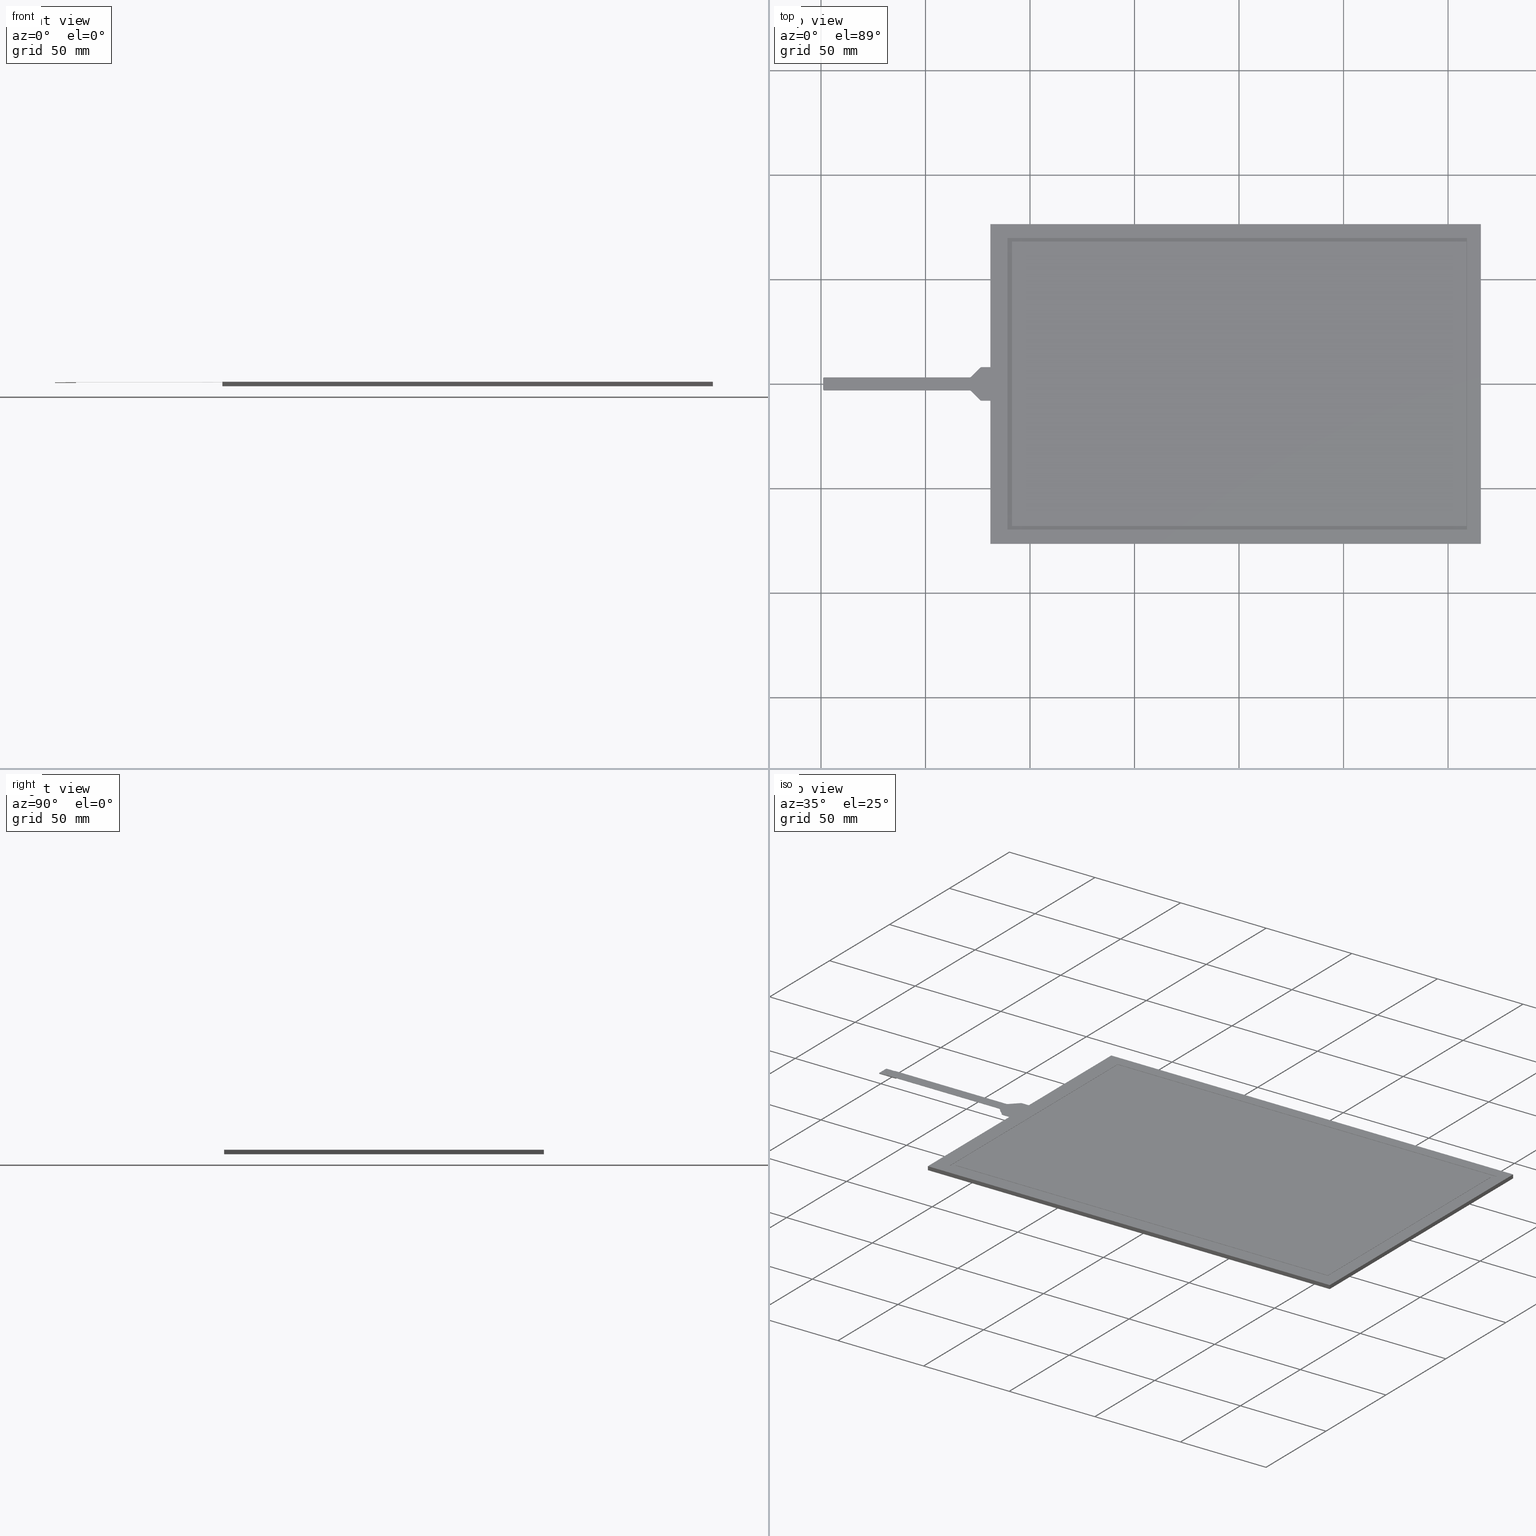
[diagram: canonical four-view strip — front | top / right | iso, engineering-drawing reading convention]
A machine part, canonical four-view strip (front | top / right | iso — engineering-drawing reading convention). The complete STEP part file that produces these views, byte-faithful:
ISO-10303-21;
HEADER;
/* Generated by software containing ST-Developer
 * from STEP Tools, Inc. (www.steptools.com) 
 */

FILE_DESCRIPTION(
/* description */ (''),
/* implementation_level */ '2;1');

FILE_NAME(
/* name */ 
'\\\\172.16.4.5\\\X2\65B06280885390E8\X0\$\\10 \X2\4E0066424FDD7BA1\X0\\\
\X2\5E737530\X0\\\\X2\2465\X0\ 3D CAD\\\X2\2460\X0\ \X2\6A196E9654C1\X0\\\
\X2\62B56297819C\X0\\\\X2\2460\X0\ LST\\LST-101WB080A\\LST-101WB080A.s
tp',
/* time_stamp */ '2023-04-26T11:03:07+09:00',
/* author */ ('n-hirata'),
/* organization */ (''),
/* preprocessor_version */ 'ST-DEVELOPER v18.1',
/* originating_system */ 'Autodesk Inventor 2020',
/* authorisation */ '');

FILE_SCHEMA (('CONFIG_CONTROL_DESIGN'));
ENDSEC;

DATA;
#10=MECHANICAL_DESIGN_GEOMETRIC_PRESENTATION_REPRESENTATION('',(#13),#1617);
#11=SHAPE_REPRESENTATION_RELATIONSHIP('SRR','None',#1624,#12);
#12=ADVANCED_BREP_SHAPE_REPRESENTATION('',(#14),#1616);
#13=STYLED_ITEM('',(#1633),#14);
#14=MANIFOLD_SOLID_BREP('\X2\30BD30EA30C330C9\X0\1',#995);
#15=FACE_BOUND('',#158,.T.);
#16=FACE_BOUND('',#160,.T.);
#17=FACE_BOUND('',#162,.T.);
#18=PLANE('',#1018);
#19=PLANE('',#1022);
#20=PLANE('',#1027);
#21=PLANE('',#1030);
#22=PLANE('',#1031);
#23=PLANE('',#1035);
#24=PLANE('',#1036);
#25=PLANE('',#1040);
#26=PLANE('',#1041);
#27=PLANE('',#1042);
#28=PLANE('',#1043);
#29=PLANE('',#1044);
#30=PLANE('',#1045);
#31=PLANE('',#1046);
#32=PLANE('',#1047);
#33=PLANE('',#1048);
#34=PLANE('',#1049);
#35=PLANE('',#1050);
#36=PLANE('',#1051);
#37=PLANE('',#1052);
#38=PLANE('',#1053);
#39=PLANE('',#1054);
#40=PLANE('',#1055);
#41=PLANE('',#1056);
#42=PLANE('',#1057);
#43=PLANE('',#1058);
#44=PLANE('',#1059);
#45=PLANE('',#1060);
#46=PLANE('',#1061);
#47=PLANE('',#1062);
#48=PLANE('',#1063);
#49=PLANE('',#1064);
#50=PLANE('',#1065);
#51=PLANE('',#1066);
#52=PLANE('',#1067);
#53=PLANE('',#1068);
#54=PLANE('',#1069);
#55=PLANE('',#1070);
#56=PLANE('',#1071);
#57=PLANE('',#1072);
#58=PLANE('',#1073);
#59=PLANE('',#1074);
#60=PLANE('',#1075);
#61=PLANE('',#1076);
#62=PLANE('',#1077);
#63=FACE_OUTER_BOUND('',#114,.T.);
#64=FACE_OUTER_BOUND('',#115,.T.);
#65=FACE_OUTER_BOUND('',#116,.T.);
#66=FACE_OUTER_BOUND('',#117,.T.);
#67=FACE_OUTER_BOUND('',#118,.T.);
#68=FACE_OUTER_BOUND('',#119,.T.);
#69=FACE_OUTER_BOUND('',#120,.T.);
#70=FACE_OUTER_BOUND('',#121,.T.);
#71=FACE_OUTER_BOUND('',#122,.T.);
#72=FACE_OUTER_BOUND('',#123,.T.);
#73=FACE_OUTER_BOUND('',#124,.T.);
#74=FACE_OUTER_BOUND('',#125,.T.);
#75=FACE_OUTER_BOUND('',#126,.T.);
#76=FACE_OUTER_BOUND('',#127,.T.);
#77=FACE_OUTER_BOUND('',#128,.T.);
#78=FACE_OUTER_BOUND('',#129,.T.);
#79=FACE_OUTER_BOUND('',#130,.T.);
#80=FACE_OUTER_BOUND('',#131,.T.);
#81=FACE_OUTER_BOUND('',#132,.T.);
#82=FACE_OUTER_BOUND('',#133,.T.);
#83=FACE_OUTER_BOUND('',#134,.T.);
#84=FACE_OUTER_BOUND('',#135,.T.);
#85=FACE_OUTER_BOUND('',#136,.T.);
#86=FACE_OUTER_BOUND('',#137,.T.);
#87=FACE_OUTER_BOUND('',#138,.T.);
#88=FACE_OUTER_BOUND('',#139,.T.);
#89=FACE_OUTER_BOUND('',#140,.T.);
#90=FACE_OUTER_BOUND('',#141,.T.);
#91=FACE_OUTER_BOUND('',#142,.T.);
#92=FACE_OUTER_BOUND('',#143,.T.);
#93=FACE_OUTER_BOUND('',#144,.T.);
#94=FACE_OUTER_BOUND('',#145,.T.);
#95=FACE_OUTER_BOUND('',#146,.T.);
#96=FACE_OUTER_BOUND('',#147,.T.);
#97=FACE_OUTER_BOUND('',#148,.T.);
#98=FACE_OUTER_BOUND('',#149,.T.);
#99=FACE_OUTER_BOUND('',#150,.T.);
#100=FACE_OUTER_BOUND('',#151,.T.);
#101=FACE_OUTER_BOUND('',#152,.T.);
#102=FACE_OUTER_BOUND('',#153,.T.);
#103=FACE_OUTER_BOUND('',#154,.T.);
#104=FACE_OUTER_BOUND('',#155,.T.);
#105=FACE_OUTER_BOUND('',#156,.T.);
#106=FACE_OUTER_BOUND('',#157,.T.);
#107=FACE_OUTER_BOUND('',#159,.T.);
#108=FACE_OUTER_BOUND('',#161,.T.);
#109=FACE_OUTER_BOUND('',#163,.T.);
#110=FACE_OUTER_BOUND('',#164,.T.);
#111=FACE_OUTER_BOUND('',#165,.T.);
#112=FACE_OUTER_BOUND('',#166,.T.);
#113=FACE_OUTER_BOUND('',#167,.T.);
#114=EDGE_LOOP('',(#662,#663,#664,#665));
#115=EDGE_LOOP('',(#666,#667,#668,#669,#670,#671,#672,#673,#674,#675,#676,
#677));
#116=EDGE_LOOP('',(#678,#679,#680,#681));
#117=EDGE_LOOP('',(#682,#683,#684,#685));
#118=EDGE_LOOP('',(#686,#687,#688,#689));
#119=EDGE_LOOP('',(#690,#691,#692,#693,#694,#695,#696,#697));
#120=EDGE_LOOP('',(#698,#699,#700,#701));
#121=EDGE_LOOP('',(#702,#703,#704,#705));
#122=EDGE_LOOP('',(#706,#707,#708,#709,#710,#711,#712,#713,#714,#715,#716,
#717));
#123=EDGE_LOOP('',(#718,#719,#720,#721));
#124=EDGE_LOOP('',(#722,#723,#724,#725,#726));
#125=EDGE_LOOP('',(#727,#728,#729,#730,#731,#732,#733,#734,#735,#736,#737,
#738,#739,#740,#741,#742,#743,#744,#745,#746));
#126=EDGE_LOOP('',(#747,#748,#749,#750));
#127=EDGE_LOOP('',(#751,#752,#753,#754,#755));
#128=EDGE_LOOP('',(#756,#757,#758,#759));
#129=EDGE_LOOP('',(#760,#761,#762,#763));
#130=EDGE_LOOP('',(#764,#765,#766,#767));
#131=EDGE_LOOP('',(#768,#769,#770,#771));
#132=EDGE_LOOP('',(#772,#773,#774,#775));
#133=EDGE_LOOP('',(#776,#777,#778,#779));
#134=EDGE_LOOP('',(#780,#781,#782,#783));
#135=EDGE_LOOP('',(#784,#785,#786,#787));
#136=EDGE_LOOP('',(#788,#789,#790,#791));
#137=EDGE_LOOP('',(#792,#793,#794,#795));
#138=EDGE_LOOP('',(#796,#797,#798,#799));
#139=EDGE_LOOP('',(#800,#801,#802,#803));
#140=EDGE_LOOP('',(#804,#805,#806,#807));
#141=EDGE_LOOP('',(#808,#809,#810,#811));
#142=EDGE_LOOP('',(#812,#813,#814,#815));
#143=EDGE_LOOP('',(#816,#817,#818,#819,#820,#821,#822,#823,#824,#825,#826,
#827,#828,#829,#830,#831,#832,#833,#834,#835));
#144=EDGE_LOOP('',(#836,#837,#838,#839));
#145=EDGE_LOOP('',(#840,#841,#842,#843,#844,#845));
#146=EDGE_LOOP('',(#846,#847,#848,#849));
#147=EDGE_LOOP('',(#850,#851,#852,#853,#854,#855,#856,#857));
#148=EDGE_LOOP('',(#858,#859,#860,#861));
#149=EDGE_LOOP('',(#862,#863,#864,#865));
#150=EDGE_LOOP('',(#866,#867,#868,#869));
#151=EDGE_LOOP('',(#870,#871,#872,#873));
#152=EDGE_LOOP('',(#874,#875,#876,#877));
#153=EDGE_LOOP('',(#878,#879,#880,#881));
#154=EDGE_LOOP('',(#882,#883,#884,#885));
#155=EDGE_LOOP('',(#886,#887,#888,#889));
#156=EDGE_LOOP('',(#890,#891,#892,#893));
#157=EDGE_LOOP('',(#894,#895,#896,#897));
#158=EDGE_LOOP('',(#898,#899,#900,#901));
#159=EDGE_LOOP('',(#902,#903,#904,#905));
#160=EDGE_LOOP('',(#906,#907,#908,#909));
#161=EDGE_LOOP('',(#910,#911,#912,#913));
#162=EDGE_LOOP('',(#914,#915,#916,#917));
#163=EDGE_LOOP('',(#918,#919,#920,#921));
#164=EDGE_LOOP('',(#922,#923,#924,#925));
#165=EDGE_LOOP('',(#926,#927,#928,#929));
#166=EDGE_LOOP('',(#930,#931,#932,#933));
#167=EDGE_LOOP('',(#934,#935,#936,#937));
#168=LINE('',#1338,#294);
#169=LINE('',#1341,#295);
#170=LINE('',#1344,#296);
#171=LINE('',#1348,#297);
#172=LINE('',#1350,#298);
#173=LINE('',#1352,#299);
#174=LINE('',#1356,#300);
#175=LINE('',#1360,#301);
#176=LINE('',#1362,#302);
#177=LINE('',#1363,#303);
#178=LINE('',#1366,#304);
#179=LINE('',#1367,#305);
#180=LINE('',#1371,#306);
#181=LINE('',#1374,#307);
#182=LINE('',#1377,#308);
#183=LINE('',#1380,#309);
#184=LINE('',#1382,#310);
#185=LINE('',#1384,#311);
#186=LINE('',#1386,#312);
#187=LINE('',#1388,#313);
#188=LINE('',#1389,#314);
#189=LINE('',#1394,#315);
#190=LINE('',#1395,#316);
#191=LINE('',#1398,#317);
#192=LINE('',#1399,#318);
#193=LINE('',#1402,#319);
#194=LINE('',#1403,#320);
#195=LINE('',#1404,#321);
#196=LINE('',#1406,#322);
#197=LINE('',#1407,#323);
#198=LINE('',#1413,#324);
#199=LINE('',#1416,#325);
#200=LINE('',#1419,#326);
#201=LINE('',#1421,#327);
#202=LINE('',#1423,#328);
#203=LINE('',#1424,#329);
#204=LINE('',#1427,#330);
#205=LINE('',#1429,#331);
#206=LINE('',#1431,#332);
#207=LINE('',#1433,#333);
#208=LINE('',#1435,#334);
#209=LINE('',#1437,#335);
#210=LINE('',#1439,#336);
#211=LINE('',#1441,#337);
#212=LINE('',#1443,#338);
#213=LINE('',#1445,#339);
#214=LINE('',#1447,#340);
#215=LINE('',#1449,#341);
#216=LINE('',#1451,#342);
#217=LINE('',#1453,#343);
#218=LINE('',#1455,#344);
#219=LINE('',#1457,#345);
#220=LINE('',#1459,#346);
#221=LINE('',#1460,#347);
#222=LINE('',#1466,#348);
#223=LINE('',#1467,#349);
#224=LINE('',#1470,#350);
#225=LINE('',#1472,#351);
#226=LINE('',#1473,#352);
#227=LINE('',#1476,#353);
#228=LINE('',#1477,#354);
#229=LINE('',#1479,#355);
#230=LINE('',#1482,#356);
#231=LINE('',#1484,#357);
#232=LINE('',#1485,#358);
#233=LINE('',#1488,#359);
#234=LINE('',#1490,#360);
#235=LINE('',#1491,#361);
#236=LINE('',#1493,#362);
#237=LINE('',#1496,#363);
#238=LINE('',#1498,#364);
#239=LINE('',#1499,#365);
#240=LINE('',#1502,#366);
#241=LINE('',#1504,#367);
#242=LINE('',#1505,#368);
#243=LINE('',#1507,#369);
#244=LINE('',#1510,#370);
#245=LINE('',#1511,#371);
#246=LINE('',#1513,#372);
#247=LINE('',#1515,#373);
#248=LINE('',#1518,#374);
#249=LINE('',#1519,#375);
#250=LINE('',#1522,#376);
#251=LINE('',#1523,#377);
#252=LINE('',#1525,#378);
#253=LINE('',#1527,#379);
#254=LINE('',#1530,#380);
#255=LINE('',#1531,#381);
#256=LINE('',#1533,#382);
#257=LINE('',#1535,#383);
#258=LINE('',#1541,#384);
#259=LINE('',#1543,#385);
#260=LINE('',#1545,#386);
#261=LINE('',#1546,#387);
#262=LINE('',#1549,#388);
#263=LINE('',#1551,#389);
#264=LINE('',#1552,#390);
#265=LINE('',#1555,#391);
#266=LINE('',#1557,#392);
#267=LINE('',#1558,#393);
#268=LINE('',#1560,#394);
#269=LINE('',#1561,#395);
#270=LINE('',#1565,#396);
#271=LINE('',#1567,#397);
#272=LINE('',#1569,#398);
#273=LINE('',#1570,#399);
#274=LINE('',#1573,#400);
#275=LINE('',#1575,#401);
#276=LINE('',#1576,#402);
#277=LINE('',#1579,#403);
#278=LINE('',#1581,#404);
#279=LINE('',#1582,#405);
#280=LINE('',#1584,#406);
#281=LINE('',#1585,#407);
#282=LINE('',#1590,#408);
#283=LINE('',#1592,#409);
#284=LINE('',#1594,#410);
#285=LINE('',#1595,#411);
#286=LINE('',#1598,#412);
#287=LINE('',#1600,#413);
#288=LINE('',#1601,#414);
#289=LINE('',#1604,#415);
#290=LINE('',#1605,#416);
#291=LINE('',#1608,#417);
#292=LINE('',#1609,#418);
#293=LINE('',#1611,#419);
#294=VECTOR('',#1084,10.);
#295=VECTOR('',#1087,10.);
#296=VECTOR('',#1090,10.);
#297=VECTOR('',#1093,10.);
#298=VECTOR('',#1094,10.);
#299=VECTOR('',#1095,10.);
#300=VECTOR('',#1098,10.);
#301=VECTOR('',#1101,10.);
#302=VECTOR('',#1102,10.);
#303=VECTOR('',#1103,10.);
#304=VECTOR('',#1106,10.);
#305=VECTOR('',#1107,10.);
#306=VECTOR('',#1112,10.);
#307=VECTOR('',#1115,10.);
#308=VECTOR('',#1118,10.);
#309=VECTOR('',#1121,10.);
#310=VECTOR('',#1122,10.);
#311=VECTOR('',#1123,10.);
#312=VECTOR('',#1124,10.);
#313=VECTOR('',#1125,10.);
#314=VECTOR('',#1126,10.);
#315=VECTOR('',#1131,10.);
#316=VECTOR('',#1132,10.);
#317=VECTOR('',#1135,10.);
#318=VECTOR('',#1136,10.);
#319=VECTOR('',#1139,10.);
#320=VECTOR('',#1140,10.);
#321=VECTOR('',#1141,10.);
#322=VECTOR('',#1142,10.);
#323=VECTOR('',#1143,10.);
#324=VECTOR('',#1148,10.);
#325=VECTOR('',#1151,10.);
#326=VECTOR('',#1154,10.);
#327=VECTOR('',#1155,10.);
#328=VECTOR('',#1156,10.);
#329=VECTOR('',#1157,10.);
#330=VECTOR('',#1160,10.);
#331=VECTOR('',#1161,10.);
#332=VECTOR('',#1162,10.);
#333=VECTOR('',#1163,10.);
#334=VECTOR('',#1164,10.);
#335=VECTOR('',#1165,10.);
#336=VECTOR('',#1166,10.);
#337=VECTOR('',#1167,10.);
#338=VECTOR('',#1168,10.);
#339=VECTOR('',#1169,10.);
#340=VECTOR('',#1170,10.);
#341=VECTOR('',#1171,10.);
#342=VECTOR('',#1172,10.);
#343=VECTOR('',#1173,10.);
#344=VECTOR('',#1174,10.);
#345=VECTOR('',#1175,10.);
#346=VECTOR('',#1176,10.);
#347=VECTOR('',#1177,10.);
#348=VECTOR('',#1186,10.);
#349=VECTOR('',#1187,10.);
#350=VECTOR('',#1190,10.);
#351=VECTOR('',#1191,10.);
#352=VECTOR('',#1192,10.);
#353=VECTOR('',#1195,10.);
#354=VECTOR('',#1196,10.);
#355=VECTOR('',#1199,10.);
#356=VECTOR('',#1202,10.);
#357=VECTOR('',#1203,10.);
#358=VECTOR('',#1204,10.);
#359=VECTOR('',#1207,10.);
#360=VECTOR('',#1208,10.);
#361=VECTOR('',#1209,10.);
#362=VECTOR('',#1212,10.);
#363=VECTOR('',#1215,10.);
#364=VECTOR('',#1216,10.);
#365=VECTOR('',#1217,10.);
#366=VECTOR('',#1220,10.);
#367=VECTOR('',#1221,10.);
#368=VECTOR('',#1222,10.);
#369=VECTOR('',#1225,10.);
#370=VECTOR('',#1228,10.);
#371=VECTOR('',#1229,10.);
#372=VECTOR('',#1232,10.);
#373=VECTOR('',#1235,10.);
#374=VECTOR('',#1238,10.);
#375=VECTOR('',#1239,10.);
#376=VECTOR('',#1242,10.);
#377=VECTOR('',#1243,10.);
#378=VECTOR('',#1246,10.);
#379=VECTOR('',#1249,10.);
#380=VECTOR('',#1252,10.);
#381=VECTOR('',#1253,10.);
#382=VECTOR('',#1256,10.);
#383=VECTOR('',#1259,10.);
#384=VECTOR('',#1266,10.);
#385=VECTOR('',#1267,10.);
#386=VECTOR('',#1268,10.);
#387=VECTOR('',#1269,10.);
#388=VECTOR('',#1272,10.);
#389=VECTOR('',#1273,10.);
#390=VECTOR('',#1274,10.);
#391=VECTOR('',#1277,10.);
#392=VECTOR('',#1278,10.);
#393=VECTOR('',#1279,10.);
#394=VECTOR('',#1282,10.);
#395=VECTOR('',#1283,10.);
#396=VECTOR('',#1286,10.);
#397=VECTOR('',#1287,10.);
#398=VECTOR('',#1288,10.);
#399=VECTOR('',#1289,10.);
#400=VECTOR('',#1292,10.);
#401=VECTOR('',#1293,10.);
#402=VECTOR('',#1294,10.);
#403=VECTOR('',#1297,10.);
#404=VECTOR('',#1298,10.);
#405=VECTOR('',#1299,10.);
#406=VECTOR('',#1302,10.);
#407=VECTOR('',#1303,10.);
#408=VECTOR('',#1308,10.);
#409=VECTOR('',#1309,10.);
#410=VECTOR('',#1310,10.);
#411=VECTOR('',#1311,10.);
#412=VECTOR('',#1314,10.);
#413=VECTOR('',#1315,10.);
#414=VECTOR('',#1316,10.);
#415=VECTOR('',#1319,10.);
#416=VECTOR('',#1320,10.);
#417=VECTOR('',#1323,10.);
#418=VECTOR('',#1324,10.);
#419=VECTOR('',#1327,10.);
#420=CIRCLE('',#1016,1.);
#421=CIRCLE('',#1017,1.);
#422=CIRCLE('',#1019,1.);
#423=CIRCLE('',#1020,1.);
#424=CIRCLE('',#1021,1.);
#425=CIRCLE('',#1024,1.);
#426=CIRCLE('',#1026,1.);
#427=CIRCLE('',#1029,1.);
#428=CIRCLE('',#1033,0.5);
#429=CIRCLE('',#1034,0.5);
#430=CIRCLE('',#1038,0.5);
#431=CIRCLE('',#1039,0.5);
#432=VERTEX_POINT('',#1334);
#433=VERTEX_POINT('',#1335);
#434=VERTEX_POINT('',#1337);
#435=VERTEX_POINT('',#1339);
#436=VERTEX_POINT('',#1343);
#437=VERTEX_POINT('',#1345);
#438=VERTEX_POINT('',#1347);
#439=VERTEX_POINT('',#1349);
#440=VERTEX_POINT('',#1351);
#441=VERTEX_POINT('',#1353);
#442=VERTEX_POINT('',#1355);
#443=VERTEX_POINT('',#1357);
#444=VERTEX_POINT('',#1359);
#445=VERTEX_POINT('',#1361);
#446=VERTEX_POINT('',#1365);
#447=VERTEX_POINT('',#1369);
#448=VERTEX_POINT('',#1373);
#449=VERTEX_POINT('',#1375);
#450=VERTEX_POINT('',#1379);
#451=VERTEX_POINT('',#1381);
#452=VERTEX_POINT('',#1383);
#453=VERTEX_POINT('',#1385);
#454=VERTEX_POINT('',#1387);
#455=VERTEX_POINT('',#1391);
#456=VERTEX_POINT('',#1392);
#457=VERTEX_POINT('',#1397);
#458=VERTEX_POINT('',#1401);
#459=VERTEX_POINT('',#1405);
#460=VERTEX_POINT('',#1409);
#461=VERTEX_POINT('',#1410);
#462=VERTEX_POINT('',#1412);
#463=VERTEX_POINT('',#1414);
#464=VERTEX_POINT('',#1418);
#465=VERTEX_POINT('',#1420);
#466=VERTEX_POINT('',#1422);
#467=VERTEX_POINT('',#1426);
#468=VERTEX_POINT('',#1428);
#469=VERTEX_POINT('',#1430);
#470=VERTEX_POINT('',#1432);
#471=VERTEX_POINT('',#1434);
#472=VERTEX_POINT('',#1436);
#473=VERTEX_POINT('',#1438);
#474=VERTEX_POINT('',#1440);
#475=VERTEX_POINT('',#1442);
#476=VERTEX_POINT('',#1444);
#477=VERTEX_POINT('',#1446);
#478=VERTEX_POINT('',#1448);
#479=VERTEX_POINT('',#1450);
#480=VERTEX_POINT('',#1452);
#481=VERTEX_POINT('',#1454);
#482=VERTEX_POINT('',#1456);
#483=VERTEX_POINT('',#1458);
#484=VERTEX_POINT('',#1465);
#485=VERTEX_POINT('',#1469);
#486=VERTEX_POINT('',#1471);
#487=VERTEX_POINT('',#1475);
#488=VERTEX_POINT('',#1481);
#489=VERTEX_POINT('',#1483);
#490=VERTEX_POINT('',#1487);
#491=VERTEX_POINT('',#1489);
#492=VERTEX_POINT('',#1495);
#493=VERTEX_POINT('',#1497);
#494=VERTEX_POINT('',#1501);
#495=VERTEX_POINT('',#1503);
#496=VERTEX_POINT('',#1509);
#497=VERTEX_POINT('',#1517);
#498=VERTEX_POINT('',#1521);
#499=VERTEX_POINT('',#1529);
#500=VERTEX_POINT('',#1539);
#501=VERTEX_POINT('',#1540);
#502=VERTEX_POINT('',#1542);
#503=VERTEX_POINT('',#1544);
#504=VERTEX_POINT('',#1548);
#505=VERTEX_POINT('',#1550);
#506=VERTEX_POINT('',#1554);
#507=VERTEX_POINT('',#1556);
#508=VERTEX_POINT('',#1563);
#509=VERTEX_POINT('',#1564);
#510=VERTEX_POINT('',#1566);
#511=VERTEX_POINT('',#1568);
#512=VERTEX_POINT('',#1572);
#513=VERTEX_POINT('',#1574);
#514=VERTEX_POINT('',#1578);
#515=VERTEX_POINT('',#1580);
#516=VERTEX_POINT('',#1588);
#517=VERTEX_POINT('',#1589);
#518=VERTEX_POINT('',#1591);
#519=VERTEX_POINT('',#1593);
#520=VERTEX_POINT('',#1597);
#521=VERTEX_POINT('',#1599);
#522=VERTEX_POINT('',#1603);
#523=VERTEX_POINT('',#1607);
#524=EDGE_CURVE('',#432,#433,#420,.T.);
#525=EDGE_CURVE('',#433,#434,#168,.T.);
#526=EDGE_CURVE('',#434,#435,#421,.T.);
#527=EDGE_CURVE('',#435,#432,#169,.T.);
#528=EDGE_CURVE('',#434,#436,#170,.T.);
#529=EDGE_CURVE('',#437,#436,#422,.T.);
#530=EDGE_CURVE('',#437,#438,#171,.T.);
#531=EDGE_CURVE('',#438,#439,#172,.T.);
#532=EDGE_CURVE('',#439,#440,#173,.T.);
#533=EDGE_CURVE('',#441,#440,#423,.T.);
#534=EDGE_CURVE('',#441,#442,#174,.T.);
#535=EDGE_CURVE('',#443,#442,#424,.T.);
#536=EDGE_CURVE('',#443,#444,#175,.T.);
#537=EDGE_CURVE('',#445,#444,#176,.T.);
#538=EDGE_CURVE('',#445,#435,#177,.T.);
#539=EDGE_CURVE('',#446,#433,#178,.T.);
#540=EDGE_CURVE('',#436,#446,#179,.T.);
#541=EDGE_CURVE('',#446,#447,#425,.T.);
#542=EDGE_CURVE('',#447,#437,#180,.T.);
#543=EDGE_CURVE('',#440,#448,#181,.T.);
#544=EDGE_CURVE('',#448,#449,#426,.T.);
#545=EDGE_CURVE('',#449,#441,#182,.T.);
#546=EDGE_CURVE('',#439,#450,#183,.T.);
#547=EDGE_CURVE('',#450,#451,#184,.T.);
#548=EDGE_CURVE('',#452,#451,#185,.T.);
#549=EDGE_CURVE('',#453,#452,#186,.T.);
#550=EDGE_CURVE('',#454,#453,#187,.T.);
#551=EDGE_CURVE('',#448,#454,#188,.T.);
#552=EDGE_CURVE('',#455,#456,#427,.T.);
#553=EDGE_CURVE('',#456,#443,#189,.T.);
#554=EDGE_CURVE('',#442,#455,#190,.T.);
#555=EDGE_CURVE('',#457,#456,#191,.T.);
#556=EDGE_CURVE('',#444,#457,#192,.T.);
#557=EDGE_CURVE('',#432,#458,#193,.T.);
#558=EDGE_CURVE('',#457,#458,#194,.T.);
#559=EDGE_CURVE('',#455,#449,#195,.T.);
#560=EDGE_CURVE('',#454,#459,#196,.T.);
#561=EDGE_CURVE('',#459,#447,#197,.T.);
#562=EDGE_CURVE('',#460,#461,#428,.T.);
#563=EDGE_CURVE('',#461,#462,#198,.T.);
#564=EDGE_CURVE('',#462,#463,#429,.T.);
#565=EDGE_CURVE('',#463,#460,#199,.T.);
#566=EDGE_CURVE('',#464,#462,#200,.T.);
#567=EDGE_CURVE('',#464,#465,#201,.T.);
#568=EDGE_CURVE('',#466,#465,#202,.T.);
#569=EDGE_CURVE('',#463,#466,#203,.T.);
#570=EDGE_CURVE('',#467,#461,#204,.T.);
#571=EDGE_CURVE('',#468,#467,#205,.T.);
#572=EDGE_CURVE('',#468,#469,#206,.T.);
#573=EDGE_CURVE('',#469,#470,#207,.T.);
#574=EDGE_CURVE('',#471,#470,#208,.T.);
#575=EDGE_CURVE('',#472,#471,#209,.T.);
#576=EDGE_CURVE('',#472,#473,#210,.T.);
#577=EDGE_CURVE('',#473,#474,#211,.T.);
#578=EDGE_CURVE('',#475,#474,#212,.T.);
#579=EDGE_CURVE('',#476,#475,#213,.T.);
#580=EDGE_CURVE('',#476,#477,#214,.T.);
#581=EDGE_CURVE('',#477,#478,#215,.T.);
#582=EDGE_CURVE('',#479,#478,#216,.T.);
#583=EDGE_CURVE('',#480,#479,#217,.T.);
#584=EDGE_CURVE('',#480,#481,#218,.T.);
#585=EDGE_CURVE('',#481,#482,#219,.T.);
#586=EDGE_CURVE('',#483,#482,#220,.T.);
#587=EDGE_CURVE('',#464,#483,#221,.T.);
#588=EDGE_CURVE('',#467,#452,#430,.T.);
#589=EDGE_CURVE('',#451,#468,#431,.T.);
#590=EDGE_CURVE('',#484,#450,#222,.T.);
#591=EDGE_CURVE('',#484,#469,#223,.T.);
#592=EDGE_CURVE('',#472,#485,#224,.T.);
#593=EDGE_CURVE('',#486,#471,#225,.T.);
#594=EDGE_CURVE('',#485,#486,#226,.T.);
#595=EDGE_CURVE('',#487,#484,#227,.T.);
#596=EDGE_CURVE('',#470,#487,#228,.T.);
#597=EDGE_CURVE('',#486,#487,#229,.T.);
#598=EDGE_CURVE('',#476,#488,#230,.T.);
#599=EDGE_CURVE('',#489,#475,#231,.T.);
#600=EDGE_CURVE('',#488,#489,#232,.T.);
#601=EDGE_CURVE('',#490,#473,#233,.T.);
#602=EDGE_CURVE('',#491,#490,#234,.T.);
#603=EDGE_CURVE('',#474,#491,#235,.T.);
#604=EDGE_CURVE('',#489,#491,#236,.T.);
#605=EDGE_CURVE('',#480,#492,#237,.T.);
#606=EDGE_CURVE('',#493,#479,#238,.T.);
#607=EDGE_CURVE('',#492,#493,#239,.T.);
#608=EDGE_CURVE('',#494,#477,#240,.T.);
#609=EDGE_CURVE('',#495,#494,#241,.T.);
#610=EDGE_CURVE('',#478,#495,#242,.T.);
#611=EDGE_CURVE('',#493,#495,#243,.T.);
#612=EDGE_CURVE('',#496,#492,#244,.T.);
#613=EDGE_CURVE('',#496,#481,#245,.T.);
#614=EDGE_CURVE('',#494,#488,#246,.T.);
#615=EDGE_CURVE('',#490,#485,#247,.T.);
#616=EDGE_CURVE('',#497,#483,#248,.T.);
#617=EDGE_CURVE('',#465,#497,#249,.T.);
#618=EDGE_CURVE('',#498,#496,#250,.T.);
#619=EDGE_CURVE('',#482,#498,#251,.T.);
#620=EDGE_CURVE('',#497,#498,#252,.T.);
#621=EDGE_CURVE('',#466,#438,#253,.T.);
#622=EDGE_CURVE('',#499,#453,#254,.T.);
#623=EDGE_CURVE('',#459,#499,#255,.T.);
#624=EDGE_CURVE('',#460,#499,#256,.T.);
#625=EDGE_CURVE('',#458,#445,#257,.T.);
#626=EDGE_CURVE('',#500,#501,#258,.T.);
#627=EDGE_CURVE('',#500,#502,#259,.T.);
#628=EDGE_CURVE('',#502,#503,#260,.T.);
#629=EDGE_CURVE('',#501,#503,#261,.T.);
#630=EDGE_CURVE('',#504,#500,#262,.T.);
#631=EDGE_CURVE('',#504,#505,#263,.T.);
#632=EDGE_CURVE('',#505,#502,#264,.T.);
#633=EDGE_CURVE('',#506,#504,#265,.T.);
#634=EDGE_CURVE('',#506,#507,#266,.T.);
#635=EDGE_CURVE('',#507,#505,#267,.T.);
#636=EDGE_CURVE('',#501,#506,#268,.T.);
#637=EDGE_CURVE('',#503,#507,#269,.T.);
#638=EDGE_CURVE('',#508,#509,#270,.T.);
#639=EDGE_CURVE('',#508,#510,#271,.T.);
#640=EDGE_CURVE('',#510,#511,#272,.T.);
#641=EDGE_CURVE('',#509,#511,#273,.T.);
#642=EDGE_CURVE('',#512,#508,#274,.T.);
#643=EDGE_CURVE('',#512,#513,#275,.T.);
#644=EDGE_CURVE('',#513,#510,#276,.T.);
#645=EDGE_CURVE('',#514,#512,#277,.T.);
#646=EDGE_CURVE('',#514,#515,#278,.T.);
#647=EDGE_CURVE('',#515,#513,#279,.T.);
#648=EDGE_CURVE('',#509,#514,#280,.T.);
#649=EDGE_CURVE('',#511,#515,#281,.T.);
#650=EDGE_CURVE('',#516,#517,#282,.T.);
#651=EDGE_CURVE('',#517,#518,#283,.T.);
#652=EDGE_CURVE('',#518,#519,#284,.T.);
#653=EDGE_CURVE('',#519,#516,#285,.T.);
#654=EDGE_CURVE('',#517,#520,#286,.T.);
#655=EDGE_CURVE('',#521,#520,#287,.T.);
#656=EDGE_CURVE('',#518,#521,#288,.T.);
#657=EDGE_CURVE('',#522,#521,#289,.T.);
#658=EDGE_CURVE('',#519,#522,#290,.T.);
#659=EDGE_CURVE('',#523,#522,#291,.T.);
#660=EDGE_CURVE('',#516,#523,#292,.T.);
#661=EDGE_CURVE('',#520,#523,#293,.T.);
#662=ORIENTED_EDGE('',*,*,#524,.T.);
#663=ORIENTED_EDGE('',*,*,#525,.T.);
#664=ORIENTED_EDGE('',*,*,#526,.T.);
#665=ORIENTED_EDGE('',*,*,#527,.T.);
#666=ORIENTED_EDGE('',*,*,#526,.F.);
#667=ORIENTED_EDGE('',*,*,#528,.T.);
#668=ORIENTED_EDGE('',*,*,#529,.F.);
#669=ORIENTED_EDGE('',*,*,#530,.T.);
#670=ORIENTED_EDGE('',*,*,#531,.T.);
#671=ORIENTED_EDGE('',*,*,#532,.T.);
#672=ORIENTED_EDGE('',*,*,#533,.F.);
#673=ORIENTED_EDGE('',*,*,#534,.T.);
#674=ORIENTED_EDGE('',*,*,#535,.F.);
#675=ORIENTED_EDGE('',*,*,#536,.T.);
#676=ORIENTED_EDGE('',*,*,#537,.F.);
#677=ORIENTED_EDGE('',*,*,#538,.T.);
#678=ORIENTED_EDGE('',*,*,#525,.F.);
#679=ORIENTED_EDGE('',*,*,#539,.F.);
#680=ORIENTED_EDGE('',*,*,#540,.F.);
#681=ORIENTED_EDGE('',*,*,#528,.F.);
#682=ORIENTED_EDGE('',*,*,#529,.T.);
#683=ORIENTED_EDGE('',*,*,#540,.T.);
#684=ORIENTED_EDGE('',*,*,#541,.T.);
#685=ORIENTED_EDGE('',*,*,#542,.T.);
#686=ORIENTED_EDGE('',*,*,#533,.T.);
#687=ORIENTED_EDGE('',*,*,#543,.T.);
#688=ORIENTED_EDGE('',*,*,#544,.T.);
#689=ORIENTED_EDGE('',*,*,#545,.T.);
#690=ORIENTED_EDGE('',*,*,#543,.F.);
#691=ORIENTED_EDGE('',*,*,#532,.F.);
#692=ORIENTED_EDGE('',*,*,#546,.T.);
#693=ORIENTED_EDGE('',*,*,#547,.T.);
#694=ORIENTED_EDGE('',*,*,#548,.F.);
#695=ORIENTED_EDGE('',*,*,#549,.F.);
#696=ORIENTED_EDGE('',*,*,#550,.F.);
#697=ORIENTED_EDGE('',*,*,#551,.F.);
#698=ORIENTED_EDGE('',*,*,#552,.T.);
#699=ORIENTED_EDGE('',*,*,#553,.T.);
#700=ORIENTED_EDGE('',*,*,#535,.T.);
#701=ORIENTED_EDGE('',*,*,#554,.T.);
#702=ORIENTED_EDGE('',*,*,#553,.F.);
#703=ORIENTED_EDGE('',*,*,#555,.F.);
#704=ORIENTED_EDGE('',*,*,#556,.F.);
#705=ORIENTED_EDGE('',*,*,#536,.F.);
#706=ORIENTED_EDGE('',*,*,#524,.F.);
#707=ORIENTED_EDGE('',*,*,#557,.T.);
#708=ORIENTED_EDGE('',*,*,#558,.F.);
#709=ORIENTED_EDGE('',*,*,#555,.T.);
#710=ORIENTED_EDGE('',*,*,#552,.F.);
#711=ORIENTED_EDGE('',*,*,#559,.T.);
#712=ORIENTED_EDGE('',*,*,#544,.F.);
#713=ORIENTED_EDGE('',*,*,#551,.T.);
#714=ORIENTED_EDGE('',*,*,#560,.T.);
#715=ORIENTED_EDGE('',*,*,#561,.T.);
#716=ORIENTED_EDGE('',*,*,#541,.F.);
#717=ORIENTED_EDGE('',*,*,#539,.T.);
#718=ORIENTED_EDGE('',*,*,#562,.T.);
#719=ORIENTED_EDGE('',*,*,#563,.T.);
#720=ORIENTED_EDGE('',*,*,#564,.T.);
#721=ORIENTED_EDGE('',*,*,#565,.T.);
#722=ORIENTED_EDGE('',*,*,#564,.F.);
#723=ORIENTED_EDGE('',*,*,#566,.F.);
#724=ORIENTED_EDGE('',*,*,#567,.T.);
#725=ORIENTED_EDGE('',*,*,#568,.F.);
#726=ORIENTED_EDGE('',*,*,#569,.F.);
#727=ORIENTED_EDGE('',*,*,#563,.F.);
#728=ORIENTED_EDGE('',*,*,#570,.F.);
#729=ORIENTED_EDGE('',*,*,#571,.F.);
#730=ORIENTED_EDGE('',*,*,#572,.T.);
#731=ORIENTED_EDGE('',*,*,#573,.T.);
#732=ORIENTED_EDGE('',*,*,#574,.F.);
#733=ORIENTED_EDGE('',*,*,#575,.F.);
#734=ORIENTED_EDGE('',*,*,#576,.T.);
#735=ORIENTED_EDGE('',*,*,#577,.T.);
#736=ORIENTED_EDGE('',*,*,#578,.F.);
#737=ORIENTED_EDGE('',*,*,#579,.F.);
#738=ORIENTED_EDGE('',*,*,#580,.T.);
#739=ORIENTED_EDGE('',*,*,#581,.T.);
#740=ORIENTED_EDGE('',*,*,#582,.F.);
#741=ORIENTED_EDGE('',*,*,#583,.F.);
#742=ORIENTED_EDGE('',*,*,#584,.T.);
#743=ORIENTED_EDGE('',*,*,#585,.T.);
#744=ORIENTED_EDGE('',*,*,#586,.F.);
#745=ORIENTED_EDGE('',*,*,#587,.F.);
#746=ORIENTED_EDGE('',*,*,#566,.T.);
#747=ORIENTED_EDGE('',*,*,#588,.T.);
#748=ORIENTED_EDGE('',*,*,#548,.T.);
#749=ORIENTED_EDGE('',*,*,#589,.T.);
#750=ORIENTED_EDGE('',*,*,#571,.T.);
#751=ORIENTED_EDGE('',*,*,#589,.F.);
#752=ORIENTED_EDGE('',*,*,#547,.F.);
#753=ORIENTED_EDGE('',*,*,#590,.F.);
#754=ORIENTED_EDGE('',*,*,#591,.T.);
#755=ORIENTED_EDGE('',*,*,#572,.F.);
#756=ORIENTED_EDGE('',*,*,#592,.F.);
#757=ORIENTED_EDGE('',*,*,#575,.T.);
#758=ORIENTED_EDGE('',*,*,#593,.F.);
#759=ORIENTED_EDGE('',*,*,#594,.F.);
#760=ORIENTED_EDGE('',*,*,#591,.F.);
#761=ORIENTED_EDGE('',*,*,#595,.F.);
#762=ORIENTED_EDGE('',*,*,#596,.F.);
#763=ORIENTED_EDGE('',*,*,#573,.F.);
#764=ORIENTED_EDGE('',*,*,#596,.T.);
#765=ORIENTED_EDGE('',*,*,#597,.F.);
#766=ORIENTED_EDGE('',*,*,#593,.T.);
#767=ORIENTED_EDGE('',*,*,#574,.T.);
#768=ORIENTED_EDGE('',*,*,#598,.F.);
#769=ORIENTED_EDGE('',*,*,#579,.T.);
#770=ORIENTED_EDGE('',*,*,#599,.F.);
#771=ORIENTED_EDGE('',*,*,#600,.F.);
#772=ORIENTED_EDGE('',*,*,#601,.F.);
#773=ORIENTED_EDGE('',*,*,#602,.F.);
#774=ORIENTED_EDGE('',*,*,#603,.F.);
#775=ORIENTED_EDGE('',*,*,#577,.F.);
#776=ORIENTED_EDGE('',*,*,#603,.T.);
#777=ORIENTED_EDGE('',*,*,#604,.F.);
#778=ORIENTED_EDGE('',*,*,#599,.T.);
#779=ORIENTED_EDGE('',*,*,#578,.T.);
#780=ORIENTED_EDGE('',*,*,#605,.F.);
#781=ORIENTED_EDGE('',*,*,#583,.T.);
#782=ORIENTED_EDGE('',*,*,#606,.F.);
#783=ORIENTED_EDGE('',*,*,#607,.F.);
#784=ORIENTED_EDGE('',*,*,#608,.F.);
#785=ORIENTED_EDGE('',*,*,#609,.F.);
#786=ORIENTED_EDGE('',*,*,#610,.F.);
#787=ORIENTED_EDGE('',*,*,#581,.F.);
#788=ORIENTED_EDGE('',*,*,#610,.T.);
#789=ORIENTED_EDGE('',*,*,#611,.F.);
#790=ORIENTED_EDGE('',*,*,#606,.T.);
#791=ORIENTED_EDGE('',*,*,#582,.T.);
#792=ORIENTED_EDGE('',*,*,#605,.T.);
#793=ORIENTED_EDGE('',*,*,#612,.F.);
#794=ORIENTED_EDGE('',*,*,#613,.T.);
#795=ORIENTED_EDGE('',*,*,#584,.F.);
#796=ORIENTED_EDGE('',*,*,#598,.T.);
#797=ORIENTED_EDGE('',*,*,#614,.F.);
#798=ORIENTED_EDGE('',*,*,#608,.T.);
#799=ORIENTED_EDGE('',*,*,#580,.F.);
#800=ORIENTED_EDGE('',*,*,#592,.T.);
#801=ORIENTED_EDGE('',*,*,#615,.F.);
#802=ORIENTED_EDGE('',*,*,#601,.T.);
#803=ORIENTED_EDGE('',*,*,#576,.F.);
#804=ORIENTED_EDGE('',*,*,#567,.F.);
#805=ORIENTED_EDGE('',*,*,#587,.T.);
#806=ORIENTED_EDGE('',*,*,#616,.F.);
#807=ORIENTED_EDGE('',*,*,#617,.F.);
#808=ORIENTED_EDGE('',*,*,#613,.F.);
#809=ORIENTED_EDGE('',*,*,#618,.F.);
#810=ORIENTED_EDGE('',*,*,#619,.F.);
#811=ORIENTED_EDGE('',*,*,#585,.F.);
#812=ORIENTED_EDGE('',*,*,#619,.T.);
#813=ORIENTED_EDGE('',*,*,#620,.F.);
#814=ORIENTED_EDGE('',*,*,#616,.T.);
#815=ORIENTED_EDGE('',*,*,#586,.T.);
#816=ORIENTED_EDGE('',*,*,#595,.T.);
#817=ORIENTED_EDGE('',*,*,#590,.T.);
#818=ORIENTED_EDGE('',*,*,#546,.F.);
#819=ORIENTED_EDGE('',*,*,#531,.F.);
#820=ORIENTED_EDGE('',*,*,#621,.F.);
#821=ORIENTED_EDGE('',*,*,#568,.T.);
#822=ORIENTED_EDGE('',*,*,#617,.T.);
#823=ORIENTED_EDGE('',*,*,#620,.T.);
#824=ORIENTED_EDGE('',*,*,#618,.T.);
#825=ORIENTED_EDGE('',*,*,#612,.T.);
#826=ORIENTED_EDGE('',*,*,#607,.T.);
#827=ORIENTED_EDGE('',*,*,#611,.T.);
#828=ORIENTED_EDGE('',*,*,#609,.T.);
#829=ORIENTED_EDGE('',*,*,#614,.T.);
#830=ORIENTED_EDGE('',*,*,#600,.T.);
#831=ORIENTED_EDGE('',*,*,#604,.T.);
#832=ORIENTED_EDGE('',*,*,#602,.T.);
#833=ORIENTED_EDGE('',*,*,#615,.T.);
#834=ORIENTED_EDGE('',*,*,#594,.T.);
#835=ORIENTED_EDGE('',*,*,#597,.T.);
#836=ORIENTED_EDGE('',*,*,#560,.F.);
#837=ORIENTED_EDGE('',*,*,#550,.T.);
#838=ORIENTED_EDGE('',*,*,#622,.F.);
#839=ORIENTED_EDGE('',*,*,#623,.F.);
#840=ORIENTED_EDGE('',*,*,#562,.F.);
#841=ORIENTED_EDGE('',*,*,#624,.T.);
#842=ORIENTED_EDGE('',*,*,#622,.T.);
#843=ORIENTED_EDGE('',*,*,#549,.T.);
#844=ORIENTED_EDGE('',*,*,#588,.F.);
#845=ORIENTED_EDGE('',*,*,#570,.T.);
#846=ORIENTED_EDGE('',*,*,#527,.F.);
#847=ORIENTED_EDGE('',*,*,#538,.F.);
#848=ORIENTED_EDGE('',*,*,#625,.F.);
#849=ORIENTED_EDGE('',*,*,#557,.F.);
#850=ORIENTED_EDGE('',*,*,#542,.F.);
#851=ORIENTED_EDGE('',*,*,#561,.F.);
#852=ORIENTED_EDGE('',*,*,#623,.T.);
#853=ORIENTED_EDGE('',*,*,#624,.F.);
#854=ORIENTED_EDGE('',*,*,#565,.F.);
#855=ORIENTED_EDGE('',*,*,#569,.T.);
#856=ORIENTED_EDGE('',*,*,#621,.T.);
#857=ORIENTED_EDGE('',*,*,#530,.F.);
#858=ORIENTED_EDGE('',*,*,#545,.F.);
#859=ORIENTED_EDGE('',*,*,#559,.F.);
#860=ORIENTED_EDGE('',*,*,#554,.F.);
#861=ORIENTED_EDGE('',*,*,#534,.F.);
#862=ORIENTED_EDGE('',*,*,#626,.F.);
#863=ORIENTED_EDGE('',*,*,#627,.T.);
#864=ORIENTED_EDGE('',*,*,#628,.T.);
#865=ORIENTED_EDGE('',*,*,#629,.F.);
#866=ORIENTED_EDGE('',*,*,#630,.F.);
#867=ORIENTED_EDGE('',*,*,#631,.T.);
#868=ORIENTED_EDGE('',*,*,#632,.T.);
#869=ORIENTED_EDGE('',*,*,#627,.F.);
#870=ORIENTED_EDGE('',*,*,#633,.F.);
#871=ORIENTED_EDGE('',*,*,#634,.T.);
#872=ORIENTED_EDGE('',*,*,#635,.T.);
#873=ORIENTED_EDGE('',*,*,#631,.F.);
#874=ORIENTED_EDGE('',*,*,#636,.F.);
#875=ORIENTED_EDGE('',*,*,#629,.T.);
#876=ORIENTED_EDGE('',*,*,#637,.T.);
#877=ORIENTED_EDGE('',*,*,#634,.F.);
#878=ORIENTED_EDGE('',*,*,#638,.F.);
#879=ORIENTED_EDGE('',*,*,#639,.T.);
#880=ORIENTED_EDGE('',*,*,#640,.T.);
#881=ORIENTED_EDGE('',*,*,#641,.F.);
#882=ORIENTED_EDGE('',*,*,#642,.F.);
#883=ORIENTED_EDGE('',*,*,#643,.T.);
#884=ORIENTED_EDGE('',*,*,#644,.T.);
#885=ORIENTED_EDGE('',*,*,#639,.F.);
#886=ORIENTED_EDGE('',*,*,#645,.F.);
#887=ORIENTED_EDGE('',*,*,#646,.T.);
#888=ORIENTED_EDGE('',*,*,#647,.T.);
#889=ORIENTED_EDGE('',*,*,#643,.F.);
#890=ORIENTED_EDGE('',*,*,#648,.F.);
#891=ORIENTED_EDGE('',*,*,#641,.T.);
#892=ORIENTED_EDGE('',*,*,#649,.T.);
#893=ORIENTED_EDGE('',*,*,#646,.F.);
#894=ORIENTED_EDGE('',*,*,#649,.F.);
#895=ORIENTED_EDGE('',*,*,#640,.F.);
#896=ORIENTED_EDGE('',*,*,#644,.F.);
#897=ORIENTED_EDGE('',*,*,#647,.F.);
#898=ORIENTED_EDGE('',*,*,#637,.F.);
#899=ORIENTED_EDGE('',*,*,#628,.F.);
#900=ORIENTED_EDGE('',*,*,#632,.F.);
#901=ORIENTED_EDGE('',*,*,#635,.F.);
#902=ORIENTED_EDGE('',*,*,#650,.T.);
#903=ORIENTED_EDGE('',*,*,#651,.T.);
#904=ORIENTED_EDGE('',*,*,#652,.T.);
#905=ORIENTED_EDGE('',*,*,#653,.T.);
#906=ORIENTED_EDGE('',*,*,#638,.T.);
#907=ORIENTED_EDGE('',*,*,#648,.T.);
#908=ORIENTED_EDGE('',*,*,#645,.T.);
#909=ORIENTED_EDGE('',*,*,#642,.T.);
#910=ORIENTED_EDGE('',*,*,#651,.F.);
#911=ORIENTED_EDGE('',*,*,#654,.T.);
#912=ORIENTED_EDGE('',*,*,#655,.F.);
#913=ORIENTED_EDGE('',*,*,#656,.F.);
#914=ORIENTED_EDGE('',*,*,#556,.T.);
#915=ORIENTED_EDGE('',*,*,#558,.T.);
#916=ORIENTED_EDGE('',*,*,#625,.T.);
#917=ORIENTED_EDGE('',*,*,#537,.T.);
#918=ORIENTED_EDGE('',*,*,#652,.F.);
#919=ORIENTED_EDGE('',*,*,#656,.T.);
#920=ORIENTED_EDGE('',*,*,#657,.F.);
#921=ORIENTED_EDGE('',*,*,#658,.F.);
#922=ORIENTED_EDGE('',*,*,#653,.F.);
#923=ORIENTED_EDGE('',*,*,#658,.T.);
#924=ORIENTED_EDGE('',*,*,#659,.F.);
#925=ORIENTED_EDGE('',*,*,#660,.F.);
#926=ORIENTED_EDGE('',*,*,#650,.F.);
#927=ORIENTED_EDGE('',*,*,#660,.T.);
#928=ORIENTED_EDGE('',*,*,#661,.F.);
#929=ORIENTED_EDGE('',*,*,#654,.F.);
#930=ORIENTED_EDGE('',*,*,#626,.T.);
#931=ORIENTED_EDGE('',*,*,#636,.T.);
#932=ORIENTED_EDGE('',*,*,#633,.T.);
#933=ORIENTED_EDGE('',*,*,#630,.T.);
#934=ORIENTED_EDGE('',*,*,#661,.T.);
#935=ORIENTED_EDGE('',*,*,#659,.T.);
#936=ORIENTED_EDGE('',*,*,#657,.T.);
#937=ORIENTED_EDGE('',*,*,#655,.T.);
#938=CYLINDRICAL_SURFACE('',#1015,1.);
#939=CYLINDRICAL_SURFACE('',#1023,1.);
#940=CYLINDRICAL_SURFACE('',#1025,1.);
#941=CYLINDRICAL_SURFACE('',#1028,1.);
#942=CYLINDRICAL_SURFACE('',#1032,0.5);
#943=CYLINDRICAL_SURFACE('',#1037,0.5);
#944=ADVANCED_FACE('',(#63),#938,.T.);
#945=ADVANCED_FACE('',(#64),#18,.T.);
#946=ADVANCED_FACE('',(#65),#19,.T.);
#947=ADVANCED_FACE('',(#66),#939,.F.);
#948=ADVANCED_FACE('',(#67),#940,.F.);
#949=ADVANCED_FACE('',(#68),#20,.T.);
#950=ADVANCED_FACE('',(#69),#941,.T.);
#951=ADVANCED_FACE('',(#70),#21,.T.);
#952=ADVANCED_FACE('',(#71),#22,.T.);
#953=ADVANCED_FACE('',(#72),#942,.T.);
#954=ADVANCED_FACE('',(#73),#23,.F.);
#955=ADVANCED_FACE('',(#74),#24,.T.);
#956=ADVANCED_FACE('',(#75),#943,.T.);
#957=ADVANCED_FACE('',(#76),#25,.F.);
#958=ADVANCED_FACE('',(#77),#26,.T.);
#959=ADVANCED_FACE('',(#78),#27,.T.);
#960=ADVANCED_FACE('',(#79),#28,.T.);
#961=ADVANCED_FACE('',(#80),#29,.T.);
#962=ADVANCED_FACE('',(#81),#30,.T.);
#963=ADVANCED_FACE('',(#82),#31,.T.);
#964=ADVANCED_FACE('',(#83),#32,.T.);
#965=ADVANCED_FACE('',(#84),#33,.T.);
#966=ADVANCED_FACE('',(#85),#34,.T.);
#967=ADVANCED_FACE('',(#86),#35,.F.);
#968=ADVANCED_FACE('',(#87),#36,.F.);
#969=ADVANCED_FACE('',(#88),#37,.F.);
#970=ADVANCED_FACE('',(#89),#38,.T.);
#971=ADVANCED_FACE('',(#90),#39,.T.);
#972=ADVANCED_FACE('',(#91),#40,.T.);
#973=ADVANCED_FACE('',(#92),#41,.F.);
#974=ADVANCED_FACE('',(#93),#42,.T.);
#975=ADVANCED_FACE('',(#94),#43,.T.);
#976=ADVANCED_FACE('',(#95),#44,.T.);
#977=ADVANCED_FACE('',(#96),#45,.T.);
#978=ADVANCED_FACE('',(#97),#46,.T.);
#979=ADVANCED_FACE('',(#98),#47,.F.);
#980=ADVANCED_FACE('',(#99),#48,.F.);
#981=ADVANCED_FACE('',(#100),#49,.F.);
#982=ADVANCED_FACE('',(#101),#50,.F.);
#983=ADVANCED_FACE('',(#102),#51,.F.);
#984=ADVANCED_FACE('',(#103),#52,.F.);
#985=ADVANCED_FACE('',(#104),#53,.F.);
#986=ADVANCED_FACE('',(#105),#54,.F.);
#987=ADVANCED_FACE('',(#106,#15),#55,.F.);
#988=ADVANCED_FACE('',(#107,#16),#56,.T.);
#989=ADVANCED_FACE('',(#108,#17),#57,.T.);
#990=ADVANCED_FACE('',(#109),#58,.T.);
#991=ADVANCED_FACE('',(#110),#59,.T.);
#992=ADVANCED_FACE('',(#111),#60,.T.);
#993=ADVANCED_FACE('',(#112),#61,.T.);
#994=ADVANCED_FACE('',(#113),#62,.T.);
#995=CLOSED_SHELL('',(#944,#945,#946,#947,#948,#949,#950,#951,#952,#953,
#954,#955,#956,#957,#958,#959,#960,#961,#962,#963,#964,#965,#966,#967,#968,
#969,#970,#971,#972,#973,#974,#975,#976,#977,#978,#979,#980,#981,#982,#983,
#984,#985,#986,#987,#988,#989,#990,#991,#992,#993,#994));
#996=DERIVED_UNIT_ELEMENT(#998,1.);
#997=DERIVED_UNIT_ELEMENT(#1619,3.);
#998=(
MASS_UNIT()
NAMED_UNIT(*)
SI_UNIT($,.GRAM.)
);
#999=DERIVED_UNIT((#996,#997));
#1000=MEASURE_REPRESENTATION_ITEM('density measure',
POSITIVE_RATIO_MEASURE(1.),#999);
#1001=PROPERTY_DEFINITION_REPRESENTATION(#1006,#1003);
#1002=PROPERTY_DEFINITION_REPRESENTATION(#1007,#1004);
#1003=REPRESENTATION('material name',(#1005),#1616);
#1004=REPRESENTATION('density',(#1000),#1616);
#1005=DESCRIPTIVE_REPRESENTATION_ITEM('\X2\4E00822C\X0\','\X2\4E00822C\X0\');
#1006=PROPERTY_DEFINITION('material property','material name',#1626);
#1007=PROPERTY_DEFINITION('material property','density of part',#1626);
#1008=DATE_TIME_ROLE('creation_date');
#1009=CC_DESIGN_DATE_AND_TIME_ASSIGNMENT(#1010,#1008,(#1626));
#1010=DATE_AND_TIME(#1011,#1012);
#1011=CALENDAR_DATE(2023,26,4);
#1012=LOCAL_TIME(0,58,22.,#1013);
#1013=COORDINATED_UNIVERSAL_TIME_OFFSET(0,0,.BEHIND.);
#1014=AXIS2_PLACEMENT_3D('placement',#1332,#1078,#1079);
#1015=AXIS2_PLACEMENT_3D('',#1333,#1080,#1081);
#1016=AXIS2_PLACEMENT_3D('',#1336,#1082,#1083);
#1017=AXIS2_PLACEMENT_3D('',#1340,#1085,#1086);
#1018=AXIS2_PLACEMENT_3D('',#1342,#1088,#1089);
#1019=AXIS2_PLACEMENT_3D('',#1346,#1091,#1092);
#1020=AXIS2_PLACEMENT_3D('',#1354,#1096,#1097);
#1021=AXIS2_PLACEMENT_3D('',#1358,#1099,#1100);
#1022=AXIS2_PLACEMENT_3D('',#1364,#1104,#1105);
#1023=AXIS2_PLACEMENT_3D('',#1368,#1108,#1109);
#1024=AXIS2_PLACEMENT_3D('',#1370,#1110,#1111);
#1025=AXIS2_PLACEMENT_3D('',#1372,#1113,#1114);
#1026=AXIS2_PLACEMENT_3D('',#1376,#1116,#1117);
#1027=AXIS2_PLACEMENT_3D('',#1378,#1119,#1120);
#1028=AXIS2_PLACEMENT_3D('',#1390,#1127,#1128);
#1029=AXIS2_PLACEMENT_3D('',#1393,#1129,#1130);
#1030=AXIS2_PLACEMENT_3D('',#1396,#1133,#1134);
#1031=AXIS2_PLACEMENT_3D('',#1400,#1137,#1138);
#1032=AXIS2_PLACEMENT_3D('',#1408,#1144,#1145);
#1033=AXIS2_PLACEMENT_3D('',#1411,#1146,#1147);
#1034=AXIS2_PLACEMENT_3D('',#1415,#1149,#1150);
#1035=AXIS2_PLACEMENT_3D('',#1417,#1152,#1153);
#1036=AXIS2_PLACEMENT_3D('',#1425,#1158,#1159);
#1037=AXIS2_PLACEMENT_3D('',#1461,#1178,#1179);
#1038=AXIS2_PLACEMENT_3D('',#1462,#1180,#1181);
#1039=AXIS2_PLACEMENT_3D('',#1463,#1182,#1183);
#1040=AXIS2_PLACEMENT_3D('',#1464,#1184,#1185);
#1041=AXIS2_PLACEMENT_3D('',#1468,#1188,#1189);
#1042=AXIS2_PLACEMENT_3D('',#1474,#1193,#1194);
#1043=AXIS2_PLACEMENT_3D('',#1478,#1197,#1198);
#1044=AXIS2_PLACEMENT_3D('',#1480,#1200,#1201);
#1045=AXIS2_PLACEMENT_3D('',#1486,#1205,#1206);
#1046=AXIS2_PLACEMENT_3D('',#1492,#1210,#1211);
#1047=AXIS2_PLACEMENT_3D('',#1494,#1213,#1214);
#1048=AXIS2_PLACEMENT_3D('',#1500,#1218,#1219);
#1049=AXIS2_PLACEMENT_3D('',#1506,#1223,#1224);
#1050=AXIS2_PLACEMENT_3D('',#1508,#1226,#1227);
#1051=AXIS2_PLACEMENT_3D('',#1512,#1230,#1231);
#1052=AXIS2_PLACEMENT_3D('',#1514,#1233,#1234);
#1053=AXIS2_PLACEMENT_3D('',#1516,#1236,#1237);
#1054=AXIS2_PLACEMENT_3D('',#1520,#1240,#1241);
#1055=AXIS2_PLACEMENT_3D('',#1524,#1244,#1245);
#1056=AXIS2_PLACEMENT_3D('',#1526,#1247,#1248);
#1057=AXIS2_PLACEMENT_3D('',#1528,#1250,#1251);
#1058=AXIS2_PLACEMENT_3D('',#1532,#1254,#1255);
#1059=AXIS2_PLACEMENT_3D('',#1534,#1257,#1258);
#1060=AXIS2_PLACEMENT_3D('',#1536,#1260,#1261);
#1061=AXIS2_PLACEMENT_3D('',#1537,#1262,#1263);
#1062=AXIS2_PLACEMENT_3D('',#1538,#1264,#1265);
#1063=AXIS2_PLACEMENT_3D('',#1547,#1270,#1271);
#1064=AXIS2_PLACEMENT_3D('',#1553,#1275,#1276);
#1065=AXIS2_PLACEMENT_3D('',#1559,#1280,#1281);
#1066=AXIS2_PLACEMENT_3D('',#1562,#1284,#1285);
#1067=AXIS2_PLACEMENT_3D('',#1571,#1290,#1291);
#1068=AXIS2_PLACEMENT_3D('',#1577,#1295,#1296);
#1069=AXIS2_PLACEMENT_3D('',#1583,#1300,#1301);
#1070=AXIS2_PLACEMENT_3D('',#1586,#1304,#1305);
#1071=AXIS2_PLACEMENT_3D('',#1587,#1306,#1307);
#1072=AXIS2_PLACEMENT_3D('',#1596,#1312,#1313);
#1073=AXIS2_PLACEMENT_3D('',#1602,#1317,#1318);
#1074=AXIS2_PLACEMENT_3D('',#1606,#1321,#1322);
#1075=AXIS2_PLACEMENT_3D('',#1610,#1325,#1326);
#1076=AXIS2_PLACEMENT_3D('',#1612,#1328,#1329);
#1077=AXIS2_PLACEMENT_3D('',#1613,#1330,#1331);
#1078=DIRECTION('axis',(0.,0.,1.));
#1079=DIRECTION('refdir',(1.,0.,0.));
#1080=DIRECTION('center_axis',(0.,0.,-1.));
#1081=DIRECTION('ref_axis',(-0.38268343236509,0.923879532511287,0.));
#1082=DIRECTION('center_axis',(0.,0.,1.));
#1083=DIRECTION('ref_axis',(-0.38268343236509,0.923879532511287,0.));
#1084=DIRECTION('',(0.,0.,1.));
#1085=DIRECTION('center_axis',(0.,0.,-1.));
#1086=DIRECTION('ref_axis',(-0.38268343236509,0.923879532511287,0.));
#1087=DIRECTION('',(0.,0.,-1.));
#1088=DIRECTION('center_axis',(0.,0.,1.));
#1089=DIRECTION('ref_axis',(1.,0.,0.));
#1090=DIRECTION('',(-0.707106781186545,-0.70710678118655,0.));
#1091=DIRECTION('center_axis',(0.,0.,1.));
#1092=DIRECTION('ref_axis',(0.382683432365091,-0.923879532511286,0.));
#1093=DIRECTION('',(-1.,-2.67713353455711E-16,0.));
#1094=DIRECTION('',(0.,-1.,0.));
#1095=DIRECTION('',(1.,-2.51965509134787E-16,0.));
#1096=DIRECTION('center_axis',(0.,0.,1.));
#1097=DIRECTION('ref_axis',(0.38268343236509,0.923879532511287,0.));
#1098=DIRECTION('',(0.707106781186545,-0.70710678118655,0.));
#1099=DIRECTION('center_axis',(0.,0.,-1.));
#1100=DIRECTION('ref_axis',(-0.382683432365089,-0.923879532511287,0.));
#1101=DIRECTION('',(1.,1.20676415720125E-15,0.));
#1102=DIRECTION('',(2.32203508418333E-16,-1.,0.));
#1103=DIRECTION('',(-1.,0.,0.));
#1104=DIRECTION('center_axis',(-0.70710678118655,0.707106781186545,0.));
#1105=DIRECTION('ref_axis',(0.707106781186545,0.70710678118655,0.));
#1106=DIRECTION('',(0.707106781186545,0.70710678118655,0.));
#1107=DIRECTION('',(0.,0.,-1.));
#1108=DIRECTION('center_axis',(0.,0.,-1.));
#1109=DIRECTION('ref_axis',(0.382683432365091,-0.923879532511286,0.));
#1110=DIRECTION('center_axis',(0.,0.,-1.));
#1111=DIRECTION('ref_axis',(0.382683432365091,-0.923879532511286,0.));
#1112=DIRECTION('',(0.,0.,1.));
#1113=DIRECTION('center_axis',(0.,0.,-1.));
#1114=DIRECTION('ref_axis',(0.38268343236509,0.923879532511287,0.));
#1115=DIRECTION('',(0.,0.,-1.));
#1116=DIRECTION('center_axis',(0.,0.,-1.));
#1117=DIRECTION('ref_axis',(0.38268343236509,0.923879532511287,0.));
#1118=DIRECTION('',(0.,0.,1.));
#1119=DIRECTION('center_axis',(-2.51965509134787E-16,-1.,0.));
#1120=DIRECTION('ref_axis',(-1.,2.51965509134787E-16,0.));
#1121=DIRECTION('',(0.,0.,-1.));
#1122=DIRECTION('',(-1.,2.51965509134787E-16,0.));
#1123=DIRECTION('',(0.,0.,1.));
#1124=DIRECTION('',(-1.,1.11022302462516E-16,0.));
#1125=DIRECTION('',(0.,0.,-1.));
#1126=DIRECTION('',(-1.,2.51965509134787E-16,0.));
#1127=DIRECTION('center_axis',(0.,0.,-1.));
#1128=DIRECTION('ref_axis',(-0.382683432365089,-0.923879532511287,0.));
#1129=DIRECTION('center_axis',(0.,0.,1.));
#1130=DIRECTION('ref_axis',(-0.382683432365089,-0.923879532511287,0.));
#1131=DIRECTION('',(0.,0.,1.));
#1132=DIRECTION('',(0.,0.,-1.));
#1133=DIRECTION('center_axis',(1.20676415720125E-15,-1.,0.));
#1134=DIRECTION('ref_axis',(-1.,-1.20676415720125E-15,0.));
#1135=DIRECTION('',(-1.,-1.20676415720125E-15,0.));
#1136=DIRECTION('',(0.,0.,-1.));
#1137=DIRECTION('center_axis',(0.,0.,-1.));
#1138=DIRECTION('ref_axis',(-1.,0.,0.));
#1139=DIRECTION('',(1.,0.,0.));
#1140=DIRECTION('',(-2.32203508418333E-16,1.,0.));
#1141=DIRECTION('',(-0.707106781186545,0.70710678118655,0.));
#1142=DIRECTION('',(0.,1.,0.));
#1143=DIRECTION('',(1.,2.67713353455711E-16,0.));
#1144=DIRECTION('center_axis',(0.,0.,-1.));
#1145=DIRECTION('ref_axis',(-0.707106781186528,0.707106781186567,0.));
#1146=DIRECTION('center_axis',(0.,0.,1.));
#1147=DIRECTION('ref_axis',(-0.707106781186528,0.707106781186567,0.));
#1148=DIRECTION('',(0.,0.,1.));
#1149=DIRECTION('center_axis',(0.,0.,-1.));
#1150=DIRECTION('ref_axis',(-0.707106781186528,0.707106781186567,0.));
#1151=DIRECTION('',(0.,0.,-1.));
#1152=DIRECTION('center_axis',(0.,0.,-1.));
#1153=DIRECTION('ref_axis',(-1.,0.,0.));
#1154=DIRECTION('',(0.,1.,0.));
#1155=DIRECTION('',(1.,0.,0.));
#1156=DIRECTION('',(0.,-1.,0.));
#1157=DIRECTION('',(1.,2.67713353455711E-16,0.));
#1158=DIRECTION('center_axis',(-1.,0.,0.));
#1159=DIRECTION('ref_axis',(0.,1.,0.));
#1160=DIRECTION('',(0.,1.,0.));
#1161=DIRECTION('',(0.,0.,-1.));
#1162=DIRECTION('',(0.,1.,0.));
#1163=DIRECTION('',(0.,0.,1.));
#1164=DIRECTION('',(0.,-1.,0.));
#1165=DIRECTION('',(0.,0.,1.));
#1166=DIRECTION('',(0.,1.,0.));
#1167=DIRECTION('',(0.,0.,1.));
#1168=DIRECTION('',(0.,-1.,0.));
#1169=DIRECTION('',(0.,0.,1.));
#1170=DIRECTION('',(0.,1.,0.));
#1171=DIRECTION('',(0.,0.,1.));
#1172=DIRECTION('',(0.,-1.,0.));
#1173=DIRECTION('',(0.,0.,1.));
#1174=DIRECTION('',(0.,1.,0.));
#1175=DIRECTION('',(0.,0.,1.));
#1176=DIRECTION('',(0.,-1.,0.));
#1177=DIRECTION('',(0.,0.,1.));
#1178=DIRECTION('center_axis',(0.,0.,-1.));
#1179=DIRECTION('ref_axis',(-0.707106781186578,-0.707106781186517,0.));
#1180=DIRECTION('center_axis',(0.,0.,1.));
#1181=DIRECTION('ref_axis',(-0.707106781186578,-0.707106781186517,0.));
#1182=DIRECTION('center_axis',(0.,0.,-1.));
#1183=DIRECTION('ref_axis',(-0.707106781186578,-0.707106781186517,0.));
#1184=DIRECTION('center_axis',(0.,0.,-1.));
#1185=DIRECTION('ref_axis',(-1.,0.,0.));
#1186=DIRECTION('',(0.,-1.,0.));
#1187=DIRECTION('',(-1.,-1.66533453693773E-16,0.));
#1188=DIRECTION('center_axis',(0.,1.,0.));
#1189=DIRECTION('ref_axis',(-1.,0.,0.));
#1190=DIRECTION('',(1.,0.,0.));
#1191=DIRECTION('',(-1.,0.,0.));
#1192=DIRECTION('',(0.,0.,1.));
#1193=DIRECTION('center_axis',(1.66533453693773E-16,-1.,0.));
#1194=DIRECTION('ref_axis',(1.,1.66533453693773E-16,0.));
#1195=DIRECTION('',(0.,0.,-1.));
#1196=DIRECTION('',(1.,1.66533453693773E-16,0.));
#1197=DIRECTION('center_axis',(0.,0.,1.));
#1198=DIRECTION('ref_axis',(1.,0.,0.));
#1199=DIRECTION('',(0.,-1.,0.));
#1200=DIRECTION('center_axis',(0.,1.,0.));
#1201=DIRECTION('ref_axis',(-1.,0.,0.));
#1202=DIRECTION('',(1.,0.,0.));
#1203=DIRECTION('',(-1.,0.,0.));
#1204=DIRECTION('',(0.,0.,1.));
#1205=DIRECTION('center_axis',(1.66533453693773E-16,-1.,0.));
#1206=DIRECTION('ref_axis',(1.,1.66533453693773E-16,0.));
#1207=DIRECTION('',(-1.,-1.66533453693773E-16,0.));
#1208=DIRECTION('',(0.,0.,-1.));
#1209=DIRECTION('',(1.,1.66533453693773E-16,0.));
#1210=DIRECTION('center_axis',(0.,0.,1.));
#1211=DIRECTION('ref_axis',(1.,0.,0.));
#1212=DIRECTION('',(0.,-1.,0.));
#1213=DIRECTION('center_axis',(0.,1.,0.));
#1214=DIRECTION('ref_axis',(-1.,0.,0.));
#1215=DIRECTION('',(1.,0.,0.));
#1216=DIRECTION('',(-1.,0.,0.));
#1217=DIRECTION('',(0.,0.,1.));
#1218=DIRECTION('center_axis',(1.66533453693773E-16,-1.,0.));
#1219=DIRECTION('ref_axis',(1.,1.66533453693773E-16,0.));
#1220=DIRECTION('',(-1.,-1.66533453693773E-16,0.));
#1221=DIRECTION('',(0.,0.,-1.));
#1222=DIRECTION('',(1.,1.66533453693773E-16,0.));
#1223=DIRECTION('center_axis',(0.,0.,1.));
#1224=DIRECTION('ref_axis',(1.,0.,0.));
#1225=DIRECTION('',(0.,-1.,0.));
#1226=DIRECTION('center_axis',(0.,0.,-1.));
#1227=DIRECTION('ref_axis',(-1.,0.,0.));
#1228=DIRECTION('',(0.,-1.,0.));
#1229=DIRECTION('',(-1.,-1.66533453693773E-16,0.));
#1230=DIRECTION('center_axis',(0.,0.,-1.));
#1231=DIRECTION('ref_axis',(-1.,0.,0.));
#1232=DIRECTION('',(0.,-1.,0.));
#1233=DIRECTION('center_axis',(0.,0.,-1.));
#1234=DIRECTION('ref_axis',(-1.,0.,0.));
#1235=DIRECTION('',(0.,-1.,0.));
#1236=DIRECTION('center_axis',(0.,1.,0.));
#1237=DIRECTION('ref_axis',(-1.,0.,0.));
#1238=DIRECTION('',(-1.,0.,0.));
#1239=DIRECTION('',(0.,0.,1.));
#1240=DIRECTION('center_axis',(1.66533453693773E-16,-1.,0.));
#1241=DIRECTION('ref_axis',(1.,1.66533453693773E-16,0.));
#1242=DIRECTION('',(0.,0.,-1.));
#1243=DIRECTION('',(1.,1.66533453693773E-16,0.));
#1244=DIRECTION('center_axis',(0.,0.,1.));
#1245=DIRECTION('ref_axis',(1.,0.,0.));
#1246=DIRECTION('',(0.,-1.,0.));
#1247=DIRECTION('center_axis',(1.,0.,0.));
#1248=DIRECTION('ref_axis',(0.,-1.,0.));
#1249=DIRECTION('',(0.,0.,1.));
#1250=DIRECTION('center_axis',(1.,0.,0.));
#1251=DIRECTION('ref_axis',(0.,-1.,0.));
#1252=DIRECTION('',(0.,-1.,0.));
#1253=DIRECTION('',(0.,0.,-1.));
#1254=DIRECTION('center_axis',(0.,0.,-1.));
#1255=DIRECTION('ref_axis',(-1.,0.,0.));
#1256=DIRECTION('',(1.,-2.22044604925031E-16,0.));
#1257=DIRECTION('center_axis',(0.,1.,0.));
#1258=DIRECTION('ref_axis',(1.,0.,0.));
#1259=DIRECTION('',(0.,0.,1.));
#1260=DIRECTION('center_axis',(-2.67713353455711E-16,1.,0.));
#1261=DIRECTION('ref_axis',(1.,2.67713353455711E-16,0.));
#1262=DIRECTION('center_axis',(-0.70710678118655,-0.707106781186545,0.));
#1263=DIRECTION('ref_axis',(-0.707106781186545,0.70710678118655,0.));
#1264=DIRECTION('center_axis',(-1.63373203292583E-16,1.,0.));
#1265=DIRECTION('ref_axis',(1.,1.63373203292583E-16,0.));
#1266=DIRECTION('',(1.,1.63373203292583E-16,0.));
#1267=DIRECTION('',(0.,0.,-1.));
#1268=DIRECTION('',(1.,1.63373203292583E-16,0.));
#1269=DIRECTION('',(0.,0.,-1.));
#1270=DIRECTION('center_axis',(1.,3.91555511991238E-16,0.));
#1271=DIRECTION('ref_axis',(3.91555511991238E-16,-1.,0.));
#1272=DIRECTION('',(3.91555511991238E-16,-1.,0.));
#1273=DIRECTION('',(0.,0.,-1.));
#1274=DIRECTION('',(3.91555511991238E-16,-1.,0.));
#1275=DIRECTION('center_axis',(5.71806211524039E-16,-1.,0.));
#1276=DIRECTION('ref_axis',(-1.,-5.71806211524039E-16,0.));
#1277=DIRECTION('',(-1.,-5.71806211524039E-16,0.));
#1278=DIRECTION('',(0.,0.,-1.));
#1279=DIRECTION('',(-1.,-5.71806211524039E-16,0.));
#1280=DIRECTION('center_axis',(-1.,-2.61037007994159E-16,0.));
#1281=DIRECTION('ref_axis',(-2.61037007994159E-16,1.,0.));
#1282=DIRECTION('',(-2.61037007994159E-16,1.,0.));
#1283=DIRECTION('',(-2.61037007994159E-16,1.,0.));
#1284=DIRECTION('center_axis',(-1.,-2.53584131249144E-16,0.));
#1285=DIRECTION('ref_axis',(-2.53584131249144E-16,1.,0.));
#1286=DIRECTION('',(-2.53584131249144E-16,1.,0.));
#1287=DIRECTION('',(0.,0.,-1.));
#1288=DIRECTION('',(-2.53584131249144E-16,1.,0.));
#1289=DIRECTION('',(0.,0.,-1.));
#1290=DIRECTION('center_axis',(8.02111821277093E-17,-1.,0.));
#1291=DIRECTION('ref_axis',(-1.,-8.02111821277093E-17,0.));
#1292=DIRECTION('',(-1.,-8.02111821277093E-17,0.));
#1293=DIRECTION('',(0.,0.,-1.));
#1294=DIRECTION('',(-1.,-8.02111821277093E-17,0.));
#1295=DIRECTION('center_axis',(1.,0.,0.));
#1296=DIRECTION('ref_axis',(0.,-1.,0.));
#1297=DIRECTION('',(0.,-1.,0.));
#1298=DIRECTION('',(0.,0.,-1.));
#1299=DIRECTION('',(0.,-1.,0.));
#1300=DIRECTION('center_axis',(0.,1.,0.));
#1301=DIRECTION('ref_axis',(1.,0.,0.));
#1302=DIRECTION('',(1.,0.,0.));
#1303=DIRECTION('',(1.,0.,0.));
#1304=DIRECTION('center_axis',(0.,0.,-1.));
#1305=DIRECTION('ref_axis',(-1.,0.,0.));
#1306=DIRECTION('center_axis',(0.,0.,1.));
#1307=DIRECTION('ref_axis',(1.,0.,0.));
#1308=DIRECTION('',(-1.,0.,0.));
#1309=DIRECTION('',(2.32203508418333E-16,-1.,0.));
#1310=DIRECTION('',(1.,7.56862735151364E-17,0.));
#1311=DIRECTION('',(-1.16101754209167E-16,1.,0.));
#1312=DIRECTION('center_axis',(-1.,-2.32203508418333E-16,0.));
#1313=DIRECTION('ref_axis',(-2.32203508418333E-16,1.,0.));
#1314=DIRECTION('',(0.,0.,-1.));
#1315=DIRECTION('',(-2.32203508418333E-16,1.,0.));
#1316=DIRECTION('',(0.,0.,-1.));
#1317=DIRECTION('center_axis',(7.56862735151364E-17,-1.,0.));
#1318=DIRECTION('ref_axis',(-1.,-7.56862735151364E-17,0.));
#1319=DIRECTION('',(-1.,-7.56862735151364E-17,0.));
#1320=DIRECTION('',(0.,0.,-1.));
#1321=DIRECTION('center_axis',(1.,1.16101754209167E-16,0.));
#1322=DIRECTION('ref_axis',(1.16101754209167E-16,-1.,0.));
#1323=DIRECTION('',(1.16101754209167E-16,-1.,0.));
#1324=DIRECTION('',(0.,0.,-1.));
#1325=DIRECTION('center_axis',(0.,1.,0.));
#1326=DIRECTION('ref_axis',(1.,0.,0.));
#1327=DIRECTION('',(1.,0.,0.));
#1328=DIRECTION('center_axis',(0.,0.,1.));
#1329=DIRECTION('ref_axis',(1.,0.,0.));
#1330=DIRECTION('center_axis',(0.,0.,-1.));
#1331=DIRECTION('ref_axis',(-1.,0.,0.));
#1332=CARTESIAN_POINT('',(0.,0.,0.));
#1333=CARTESIAN_POINT('Origin',(-123.175786437627,7.04000000000009,-0.188));
#1334=CARTESIAN_POINT('',(-123.175786437627,8.04000000000009,-0.288));
#1335=CARTESIAN_POINT('',(-123.882893218813,7.74710678118663,-0.288));
#1336=CARTESIAN_POINT('Origin',(-123.175786437627,7.04000000000009,-0.288));
#1337=CARTESIAN_POINT('',(-123.882893218813,7.74710678118663,-0.188));
#1338=CARTESIAN_POINT('',(-123.882893218813,7.74710678118663,-0.188));
#1339=CARTESIAN_POINT('',(-123.175786437627,8.04000000000009,-0.188));
#1340=CARTESIAN_POINT('Origin',(-123.175786437627,7.04000000000009,-0.188));
#1341=CARTESIAN_POINT('',(-123.175786437627,8.04000000000009,-0.188));
#1342=CARTESIAN_POINT('Origin',(-158.99,0.01500000000005,-0.188));
#1343=CARTESIAN_POINT('',(-128.197106781187,3.43289321881353,-0.188));
#1344=CARTESIAN_POINT('',(-123.59,8.04000000000009,-0.188));
#1345=CARTESIAN_POINT('',(-128.904213562373,3.14000000000007,-0.188));
#1346=CARTESIAN_POINT('Origin',(-128.904213562373,4.14000000000007,-0.188));
#1347=CARTESIAN_POINT('',(-193.99,3.14000000000005,-0.188));
#1348=CARTESIAN_POINT('',(-128.49,3.14000000000007,-0.188));
#1349=CARTESIAN_POINT('',(-193.99,-3.10999999999995,-0.188));
#1350=CARTESIAN_POINT('',(-193.99,1.57750000000005,-0.188));
#1351=CARTESIAN_POINT('',(-128.904213562373,-3.10999999999997,-0.188));
#1352=CARTESIAN_POINT('',(-198.99,-3.10999999999995,-0.188));
#1353=CARTESIAN_POINT('',(-128.197106781187,-3.40289321881342,-0.188));
#1354=CARTESIAN_POINT('Origin',(-128.904213562373,-4.10999999999997,-0.188));
#1355=CARTESIAN_POINT('',(-123.882893218813,-7.71710678118653,-0.188));
#1356=CARTESIAN_POINT('',(-128.49,-3.10999999999997,-0.188));
#1357=CARTESIAN_POINT('',(-123.175786437627,-8.00999999999999,-0.188));
#1358=CARTESIAN_POINT('Origin',(-123.175786437627,-7.00999999999999,-0.188));
#1359=CARTESIAN_POINT('',(-118.99,-8.00999999999998,-0.188));
#1360=CARTESIAN_POINT('',(-123.59,-8.00999999999999,-0.188));
#1361=CARTESIAN_POINT('',(-118.99,8.04000000000009,-0.188));
#1362=CARTESIAN_POINT('',(-118.99,-38.2424999999999,-0.188));
#1363=CARTESIAN_POINT('',(-118.99,8.04000000000009,-0.188));
#1364=CARTESIAN_POINT('Origin',(-128.49,3.14000000000007,-0.188));
#1365=CARTESIAN_POINT('',(-128.197106781187,3.43289321881353,-0.288));
#1366=CARTESIAN_POINT('',(-123.59,8.04000000000009,-0.288));
#1367=CARTESIAN_POINT('',(-128.197106781187,3.43289321881353,-0.188));
#1368=CARTESIAN_POINT('Origin',(-128.904213562373,4.14000000000007,-0.188));
#1369=CARTESIAN_POINT('',(-128.904213562373,3.14000000000007,-0.288));
#1370=CARTESIAN_POINT('Origin',(-128.904213562373,4.14000000000007,-0.288));
#1371=CARTESIAN_POINT('',(-128.904213562373,3.14000000000007,-0.188));
#1372=CARTESIAN_POINT('Origin',(-128.904213562373,-4.10999999999997,-0.188));
#1373=CARTESIAN_POINT('',(-128.904213562373,-3.10999999999997,-0.288));
#1374=CARTESIAN_POINT('',(-128.904213562373,-3.10999999999997,-0.188));
#1375=CARTESIAN_POINT('',(-128.197106781187,-3.40289321881342,-0.288));
#1376=CARTESIAN_POINT('Origin',(-128.904213562373,-4.10999999999997,-0.288));
#1377=CARTESIAN_POINT('',(-128.197106781187,-3.40289321881342,-0.188));
#1378=CARTESIAN_POINT('Origin',(-128.49,-3.10999999999997,-0.188));
#1379=CARTESIAN_POINT('',(-193.99,-3.10999999999995,-0.298));
#1380=CARTESIAN_POINT('',(-193.99,-3.10999999999995,-0.188));
#1381=CARTESIAN_POINT('',(-198.49,-3.10999999999995,-0.298));
#1382=CARTESIAN_POINT('',(-162.49,-3.10999999999996,-0.298));
#1383=CARTESIAN_POINT('',(-198.49,-3.10999999999995,-0.588));
#1384=CARTESIAN_POINT('',(-198.49,-3.10999999999995,-0.188));
#1385=CARTESIAN_POINT('',(-188.99,-3.10999999999995,-0.588));
#1386=CARTESIAN_POINT('',(-188.99,-3.10999999999995,-0.588));
#1387=CARTESIAN_POINT('',(-188.99,-3.10999999999995,-0.288));
#1388=CARTESIAN_POINT('',(-188.99,-3.10999999999995,-0.288));
#1389=CARTESIAN_POINT('',(-198.99,-3.10999999999995,-0.288));
#1390=CARTESIAN_POINT('Origin',(-123.175786437627,-7.00999999999999,-0.188));
#1391=CARTESIAN_POINT('',(-123.882893218813,-7.71710678118653,-0.288));
#1392=CARTESIAN_POINT('',(-123.175786437627,-8.00999999999999,-0.288));
#1393=CARTESIAN_POINT('Origin',(-123.175786437627,-7.00999999999999,-0.288));
#1394=CARTESIAN_POINT('',(-123.175786437627,-8.00999999999999,-0.188));
#1395=CARTESIAN_POINT('',(-123.882893218813,-7.71710678118653,-0.188));
#1396=CARTESIAN_POINT('Origin',(-118.99,-8.00999999999998,-0.188));
#1397=CARTESIAN_POINT('',(-118.99,-8.00999999999998,-0.288));
#1398=CARTESIAN_POINT('',(-123.59,-8.00999999999999,-0.288));
#1399=CARTESIAN_POINT('',(-118.99,-8.00999999999998,-0.094));
#1400=CARTESIAN_POINT('Origin',(-158.99,0.0150000000000494,-0.288));
#1401=CARTESIAN_POINT('',(-118.99,8.04000000000009,-0.288));
#1402=CARTESIAN_POINT('',(-118.99,8.04000000000009,-0.288));
#1403=CARTESIAN_POINT('',(-118.99,-38.2424999999999,-0.288));
#1404=CARTESIAN_POINT('',(-128.49,-3.10999999999997,-0.288));
#1405=CARTESIAN_POINT('',(-188.99,3.14000000000005,-0.288));
#1406=CARTESIAN_POINT('',(-188.99,1.57750000000005,-0.288));
#1407=CARTESIAN_POINT('',(-128.49,3.14000000000007,-0.288));
#1408=CARTESIAN_POINT('Origin',(-198.49,2.64000000000005,-0.188));
#1409=CARTESIAN_POINT('',(-198.49,3.14000000000005,-0.588));
#1410=CARTESIAN_POINT('',(-198.99,2.64000000000005,-0.588));
#1411=CARTESIAN_POINT('Origin',(-198.49,2.64000000000005,-0.588));
#1412=CARTESIAN_POINT('',(-198.99,2.64000000000005,-0.298));
#1413=CARTESIAN_POINT('',(-198.99,2.64000000000005,-0.188));
#1414=CARTESIAN_POINT('',(-198.49,3.14000000000005,-0.298));
#1415=CARTESIAN_POINT('Origin',(-198.49,2.64000000000005,-0.298));
#1416=CARTESIAN_POINT('',(-198.49,3.14000000000005,-0.188));
#1417=CARTESIAN_POINT('Origin',(-196.49,0.0150000000000494,-0.298));
#1418=CARTESIAN_POINT('',(-198.99,2.24000000000005,-0.298));
#1419=CARTESIAN_POINT('',(-198.99,-1.54749999999995,-0.298));
#1420=CARTESIAN_POINT('',(-193.99,2.24000000000005,-0.298));
#1421=CARTESIAN_POINT('',(-195.24,2.24000000000005,-0.298));
#1422=CARTESIAN_POINT('',(-193.99,3.14000000000005,-0.298));
#1423=CARTESIAN_POINT('',(-193.99,-3.10999999999995,-0.298));
#1424=CARTESIAN_POINT('',(-197.74,3.14000000000005,-0.298));
#1425=CARTESIAN_POINT('Origin',(-198.99,-3.10999999999995,-0.188));
#1426=CARTESIAN_POINT('',(-198.99,-2.60999999999995,-0.588));
#1427=CARTESIAN_POINT('',(-198.99,-3.10999999999995,-0.588));
#1428=CARTESIAN_POINT('',(-198.99,-2.60999999999995,-0.298));
#1429=CARTESIAN_POINT('',(-198.99,-2.60999999999995,-0.188));
#1430=CARTESIAN_POINT('',(-198.99,-2.20999999999995,-0.298));
#1431=CARTESIAN_POINT('',(-198.99,-1.54749999999995,-0.298));
#1432=CARTESIAN_POINT('',(-198.99,-2.20999999999995,-0.288));
#1433=CARTESIAN_POINT('',(-198.99,-2.20999999999995,-0.298));
#1434=CARTESIAN_POINT('',(-198.99,-1.50999999999995,-0.288));
#1435=CARTESIAN_POINT('',(-198.99,-1.50999999999995,-0.288));
#1436=CARTESIAN_POINT('',(-198.99,-1.50999999999995,-0.298));
#1437=CARTESIAN_POINT('',(-198.99,-1.50999999999995,-0.298));
#1438=CARTESIAN_POINT('',(-198.99,-0.959999999999953,-0.298));
#1439=CARTESIAN_POINT('',(-198.99,-1.54749999999995,-0.298));
#1440=CARTESIAN_POINT('',(-198.99,-0.959999999999953,-0.288));
#1441=CARTESIAN_POINT('',(-198.99,-0.959999999999953,-0.298));
#1442=CARTESIAN_POINT('',(-198.99,-0.259999999999952,-0.288));
#1443=CARTESIAN_POINT('',(-198.99,-0.259999999999952,-0.288));
#1444=CARTESIAN_POINT('',(-198.99,-0.259999999999952,-0.298));
#1445=CARTESIAN_POINT('',(-198.99,-0.259999999999952,-0.298));
#1446=CARTESIAN_POINT('',(-198.99,0.290000000000047,-0.298));
#1447=CARTESIAN_POINT('',(-198.99,-1.54749999999995,-0.298));
#1448=CARTESIAN_POINT('',(-198.99,0.290000000000047,-0.288));
#1449=CARTESIAN_POINT('',(-198.99,0.290000000000047,-0.298));
#1450=CARTESIAN_POINT('',(-198.99,0.990000000000048,-0.288));
#1451=CARTESIAN_POINT('',(-198.99,0.990000000000048,-0.288));
#1452=CARTESIAN_POINT('',(-198.99,0.990000000000048,-0.298));
#1453=CARTESIAN_POINT('',(-198.99,0.990000000000048,-0.298));
#1454=CARTESIAN_POINT('',(-198.99,1.54000000000005,-0.298));
#1455=CARTESIAN_POINT('',(-198.99,-1.54749999999995,-0.298));
#1456=CARTESIAN_POINT('',(-198.99,1.54000000000005,-0.288));
#1457=CARTESIAN_POINT('',(-198.99,1.54000000000005,-0.298));
#1458=CARTESIAN_POINT('',(-198.99,2.24000000000005,-0.288));
#1459=CARTESIAN_POINT('',(-198.99,2.24000000000005,-0.288));
#1460=CARTESIAN_POINT('',(-198.99,2.24000000000005,-0.298));
#1461=CARTESIAN_POINT('Origin',(-198.49,-2.60999999999995,-0.188));
#1462=CARTESIAN_POINT('Origin',(-198.49,-2.60999999999995,-0.588));
#1463=CARTESIAN_POINT('Origin',(-198.49,-2.60999999999995,-0.298));
#1464=CARTESIAN_POINT('Origin',(-196.49,0.0150000000000494,-0.298));
#1465=CARTESIAN_POINT('',(-193.99,-2.20999999999995,-0.298));
#1466=CARTESIAN_POINT('',(-193.99,-3.10999999999995,-0.298));
#1467=CARTESIAN_POINT('',(-197.74,-2.20999999999995,-0.298));
#1468=CARTESIAN_POINT('Origin',(-193.99,-1.50999999999995,-0.298));
#1469=CARTESIAN_POINT('',(-193.99,-1.50999999999995,-0.298));
#1470=CARTESIAN_POINT('',(-195.24,-1.50999999999995,-0.298));
#1471=CARTESIAN_POINT('',(-193.99,-1.50999999999995,-0.288));
#1472=CARTESIAN_POINT('',(-193.99,-1.50999999999995,-0.288));
#1473=CARTESIAN_POINT('',(-193.99,-1.50999999999995,-0.243));
#1474=CARTESIAN_POINT('Origin',(-198.99,-2.20999999999995,-0.298));
#1475=CARTESIAN_POINT('',(-193.99,-2.20999999999995,-0.288));
#1476=CARTESIAN_POINT('',(-193.99,-2.20999999999995,-0.243));
#1477=CARTESIAN_POINT('',(-198.99,-2.20999999999995,-0.288));
#1478=CARTESIAN_POINT('Origin',(-196.49,-1.85999999999995,-0.288));
#1479=CARTESIAN_POINT('',(-193.99,0.640000000000048,-0.288));
#1480=CARTESIAN_POINT('Origin',(-193.99,-0.259999999999952,-0.298));
#1481=CARTESIAN_POINT('',(-193.99,-0.259999999999952,-0.298));
#1482=CARTESIAN_POINT('',(-195.24,-0.259999999999952,-0.298));
#1483=CARTESIAN_POINT('',(-193.99,-0.259999999999952,-0.288));
#1484=CARTESIAN_POINT('',(-193.99,-0.259999999999952,-0.288));
#1485=CARTESIAN_POINT('',(-193.99,-0.259999999999952,-0.243));
#1486=CARTESIAN_POINT('Origin',(-198.99,-0.959999999999953,-0.298));
#1487=CARTESIAN_POINT('',(-193.99,-0.959999999999952,-0.298));
#1488=CARTESIAN_POINT('',(-197.74,-0.959999999999953,-0.298));
#1489=CARTESIAN_POINT('',(-193.99,-0.959999999999952,-0.288));
#1490=CARTESIAN_POINT('',(-193.99,-0.959999999999952,-0.243));
#1491=CARTESIAN_POINT('',(-198.99,-0.959999999999953,-0.288));
#1492=CARTESIAN_POINT('Origin',(-196.49,-0.609999999999952,-0.288));
#1493=CARTESIAN_POINT('',(-193.99,1.26500000000005,-0.288));
#1494=CARTESIAN_POINT('Origin',(-193.99,0.990000000000048,-0.298));
#1495=CARTESIAN_POINT('',(-193.99,0.990000000000048,-0.298));
#1496=CARTESIAN_POINT('',(-195.24,0.990000000000048,-0.298));
#1497=CARTESIAN_POINT('',(-193.99,0.990000000000048,-0.288));
#1498=CARTESIAN_POINT('',(-193.99,0.990000000000048,-0.288));
#1499=CARTESIAN_POINT('',(-193.99,0.990000000000048,-0.243));
#1500=CARTESIAN_POINT('Origin',(-198.99,0.290000000000047,-0.298));
#1501=CARTESIAN_POINT('',(-193.99,0.290000000000048,-0.298));
#1502=CARTESIAN_POINT('',(-197.74,0.290000000000047,-0.298));
#1503=CARTESIAN_POINT('',(-193.99,0.290000000000048,-0.288));
#1504=CARTESIAN_POINT('',(-193.99,0.290000000000048,-0.243));
#1505=CARTESIAN_POINT('',(-198.99,0.290000000000047,-0.288));
#1506=CARTESIAN_POINT('Origin',(-196.49,0.640000000000048,-0.288));
#1507=CARTESIAN_POINT('',(-193.99,1.89000000000005,-0.288));
#1508=CARTESIAN_POINT('Origin',(-196.49,0.0150000000000494,-0.298));
#1509=CARTESIAN_POINT('',(-193.99,1.54000000000005,-0.298));
#1510=CARTESIAN_POINT('',(-193.99,-3.10999999999995,-0.298));
#1511=CARTESIAN_POINT('',(-197.74,1.54000000000005,-0.298));
#1512=CARTESIAN_POINT('Origin',(-196.49,0.0150000000000494,-0.298));
#1513=CARTESIAN_POINT('',(-193.99,-3.10999999999995,-0.298));
#1514=CARTESIAN_POINT('Origin',(-196.49,0.0150000000000494,-0.298));
#1515=CARTESIAN_POINT('',(-193.99,-3.10999999999995,-0.298));
#1516=CARTESIAN_POINT('Origin',(-193.99,2.24000000000005,-0.298));
#1517=CARTESIAN_POINT('',(-193.99,2.24000000000005,-0.288));
#1518=CARTESIAN_POINT('',(-193.99,2.24000000000005,-0.288));
#1519=CARTESIAN_POINT('',(-193.99,2.24000000000005,-0.243));
#1520=CARTESIAN_POINT('Origin',(-198.99,1.54000000000005,-0.298));
#1521=CARTESIAN_POINT('',(-193.99,1.54000000000005,-0.288));
#1522=CARTESIAN_POINT('',(-193.99,1.54000000000005,-0.243));
#1523=CARTESIAN_POINT('',(-198.99,1.54000000000005,-0.288));
#1524=CARTESIAN_POINT('Origin',(-196.49,1.89000000000005,-0.288));
#1525=CARTESIAN_POINT('',(-193.99,2.51500000000005,-0.288));
#1526=CARTESIAN_POINT('Origin',(-193.99,3.14000000000005,-0.188));
#1527=CARTESIAN_POINT('',(-193.99,3.14000000000005,-0.188));
#1528=CARTESIAN_POINT('Origin',(-188.99,3.14000000000005,-0.288));
#1529=CARTESIAN_POINT('',(-188.99,3.14000000000005,-0.588));
#1530=CARTESIAN_POINT('',(-188.99,3.14000000000005,-0.588));
#1531=CARTESIAN_POINT('',(-188.99,3.14000000000005,-0.288));
#1532=CARTESIAN_POINT('Origin',(-193.99,0.01500000000005,-0.588));
#1533=CARTESIAN_POINT('',(-198.99,3.14000000000005,-0.588));
#1534=CARTESIAN_POINT('Origin',(-123.59,8.04000000000009,-0.188));
#1535=CARTESIAN_POINT('',(-118.99,8.04000000000009,-0.094));
#1536=CARTESIAN_POINT('Origin',(-198.99,3.14000000000005,-0.188));
#1537=CARTESIAN_POINT('Origin',(-123.59,-8.00999999999999,-0.188));
#1538=CARTESIAN_POINT('Origin',(-108.73,-68.05,0.));
#1539=CARTESIAN_POINT('',(-108.73,-68.05,0.));
#1540=CARTESIAN_POINT('',(108.73,-68.0499999999999,0.));
#1541=CARTESIAN_POINT('',(-55.185,-68.05,0.));
#1542=CARTESIAN_POINT('',(-108.73,-68.05,-0.1));
#1543=CARTESIAN_POINT('',(-108.73,-68.05,0.));
#1544=CARTESIAN_POINT('',(108.73,-68.0499999999999,-0.1));
#1545=CARTESIAN_POINT('',(108.73,-68.0499999999999,-0.1));
#1546=CARTESIAN_POINT('',(108.73,-68.0499999999999,0.));
#1547=CARTESIAN_POINT('Origin',(-108.73,68.05,0.));
#1548=CARTESIAN_POINT('',(-108.73,68.05,0.));
#1549=CARTESIAN_POINT('',(-108.73,34.025,0.));
#1550=CARTESIAN_POINT('',(-108.73,68.05,-0.1));
#1551=CARTESIAN_POINT('',(-108.73,68.05,0.));
#1552=CARTESIAN_POINT('',(-108.73,-68.05,-0.1));
#1553=CARTESIAN_POINT('Origin',(108.73,68.0500000000001,0.));
#1554=CARTESIAN_POINT('',(108.73,68.0500000000001,0.));
#1555=CARTESIAN_POINT('',(53.545,68.0500000000001,0.));
#1556=CARTESIAN_POINT('',(108.73,68.0500000000001,-0.1));
#1557=CARTESIAN_POINT('',(108.73,68.0500000000001,0.));
#1558=CARTESIAN_POINT('',(-108.73,68.05,-0.1));
#1559=CARTESIAN_POINT('Origin',(108.73,-68.0499999999999,0.));
#1560=CARTESIAN_POINT('',(108.73,-34.0249999999999,0.));
#1561=CARTESIAN_POINT('',(108.73,68.0500000000001,-0.1));
#1562=CARTESIAN_POINT('Origin',(-110.73,-70.05,0.));
#1563=CARTESIAN_POINT('',(-110.73,-70.05,0.));
#1564=CARTESIAN_POINT('',(-110.73,70.05,0.));
#1565=CARTESIAN_POINT('',(-110.73,-35.025,0.));
#1566=CARTESIAN_POINT('',(-110.73,-70.05,-0.1));
#1567=CARTESIAN_POINT('',(-110.73,-70.05,0.));
#1568=CARTESIAN_POINT('',(-110.73,70.05,-0.1));
#1569=CARTESIAN_POINT('',(-110.73,70.05,-0.1));
#1570=CARTESIAN_POINT('',(-110.73,70.05,0.));
#1571=CARTESIAN_POINT('Origin',(110.73,-70.05,0.));
#1572=CARTESIAN_POINT('',(110.73,-70.05,0.));
#1573=CARTESIAN_POINT('',(54.545,-70.05,0.));
#1574=CARTESIAN_POINT('',(110.73,-70.05,-0.1));
#1575=CARTESIAN_POINT('',(110.73,-70.05,0.));
#1576=CARTESIAN_POINT('',(-110.73,-70.05,-0.1));
#1577=CARTESIAN_POINT('Origin',(110.73,70.05,0.));
#1578=CARTESIAN_POINT('',(110.73,70.05,0.));
#1579=CARTESIAN_POINT('',(110.73,35.025,0.));
#1580=CARTESIAN_POINT('',(110.73,70.05,-0.1));
#1581=CARTESIAN_POINT('',(110.73,70.05,0.));
#1582=CARTESIAN_POINT('',(110.73,-70.05,-0.1));
#1583=CARTESIAN_POINT('Origin',(-110.73,70.05,0.));
#1584=CARTESIAN_POINT('',(-56.185,70.05,0.));
#1585=CARTESIAN_POINT('',(110.73,70.05,-0.1));
#1586=CARTESIAN_POINT('Origin',(1.77635683940025E-14,3.5527136788005E-14,
-0.1));
#1587=CARTESIAN_POINT('Origin',(-1.64,4.44089209850063E-14,0.));
#1588=CARTESIAN_POINT('',(115.71,76.5000000000001,0.));
#1589=CARTESIAN_POINT('',(-118.99,76.5000000000001,0.));
#1590=CARTESIAN_POINT('',(115.71,76.5000000000001,0.));
#1591=CARTESIAN_POINT('',(-118.99,-76.5,0.));
#1592=CARTESIAN_POINT('',(-118.99,76.5000000000001,0.));
#1593=CARTESIAN_POINT('',(115.71,-76.4999999999999,0.));
#1594=CARTESIAN_POINT('',(-118.99,-76.5,0.));
#1595=CARTESIAN_POINT('',(115.71,-76.4999999999999,0.));
#1596=CARTESIAN_POINT('Origin',(-118.99,-76.5,0.));
#1597=CARTESIAN_POINT('',(-118.99,76.5000000000001,-2.1));
#1598=CARTESIAN_POINT('',(-118.99,76.5000000000001,0.));
#1599=CARTESIAN_POINT('',(-118.99,-76.5,-2.1));
#1600=CARTESIAN_POINT('',(-118.99,76.5000000000001,-2.1));
#1601=CARTESIAN_POINT('',(-118.99,-76.5,0.));
#1602=CARTESIAN_POINT('Origin',(115.71,-76.4999999999999,0.));
#1603=CARTESIAN_POINT('',(115.71,-76.4999999999999,-2.1));
#1604=CARTESIAN_POINT('',(-118.99,-76.5,-2.1));
#1605=CARTESIAN_POINT('',(115.71,-76.4999999999999,0.));
#1606=CARTESIAN_POINT('Origin',(115.71,76.5000000000001,0.));
#1607=CARTESIAN_POINT('',(115.71,76.5000000000001,-2.1));
#1608=CARTESIAN_POINT('',(115.71,-76.4999999999999,-2.1));
#1609=CARTESIAN_POINT('',(115.71,76.5000000000001,0.));
#1610=CARTESIAN_POINT('Origin',(-118.99,76.5000000000001,0.));
#1611=CARTESIAN_POINT('',(115.71,76.5000000000001,-2.1));
#1612=CARTESIAN_POINT('Origin',(-1.64,4.44089209850063E-14,0.));
#1613=CARTESIAN_POINT('Origin',(-1.64,4.44089209850063E-14,-2.1));
#1614=UNCERTAINTY_MEASURE_WITH_UNIT(LENGTH_MEASURE(0.01),#1618,
'DISTANCE_ACCURACY_VALUE',
'Maximum model space distance between geometric entities at asserted c
onnectivities');
#1615=UNCERTAINTY_MEASURE_WITH_UNIT(LENGTH_MEASURE(0.01),#1618,
'DISTANCE_ACCURACY_VALUE',
'Maximum model space distance between geometric entities at asserted c
onnectivities');
#1616=(
GEOMETRIC_REPRESENTATION_CONTEXT(3)
GLOBAL_UNCERTAINTY_ASSIGNED_CONTEXT((#1614))
GLOBAL_UNIT_ASSIGNED_CONTEXT((#1618,#1620,#1621))
REPRESENTATION_CONTEXT('','3D')
);
#1617=(
GEOMETRIC_REPRESENTATION_CONTEXT(3)
GLOBAL_UNCERTAINTY_ASSIGNED_CONTEXT((#1615))
GLOBAL_UNIT_ASSIGNED_CONTEXT((#1618,#1620,#1621))
REPRESENTATION_CONTEXT('','3D')
);
#1618=(
LENGTH_UNIT()
NAMED_UNIT(*)
SI_UNIT(.MILLI.,.METRE.)
);
#1619=(
LENGTH_UNIT()
NAMED_UNIT(*)
SI_UNIT(.CENTI.,.METRE.)
);
#1620=(
NAMED_UNIT(*)
PLANE_ANGLE_UNIT()
SI_UNIT($,.RADIAN.)
);
#1621=(
NAMED_UNIT(*)
SI_UNIT($,.STERADIAN.)
SOLID_ANGLE_UNIT()
);
#1622=SHAPE_DEFINITION_REPRESENTATION(#1623,#1624);
#1623=PRODUCT_DEFINITION_SHAPE('',$,#1626);
#1624=SHAPE_REPRESENTATION('',(#1014),#1616);
#1625=DESIGN_CONTEXT('part definition',#1630,'design');
#1626=PRODUCT_DEFINITION('LST-101WB080A','LST-101WB080A',#1627,#1625);
#1627=PRODUCT_DEFINITION_FORMATION('',$,#1632);
#1628=PRODUCT_RELATED_PRODUCT_CATEGORY('LST-101WB080A','LST-101WB080A',
(#1632));
#1629=APPLICATION_PROTOCOL_DEFINITION('international standard',
'ap203_configuration_controlled_3d_design_of_mechanical_parts_and_asse
mblies_mim_lf',2004,#1630);
#1630=APPLICATION_CONTEXT(
'Configuration Controlled 3D Design of Mechanical Parts and Assemblies');
#1631=MECHANICAL_CONTEXT('part definition',#1630,'mechanical');
#1632=PRODUCT('LST-101WB080A','LST-101WB080A',$,(#1631));
#1633=PRESENTATION_STYLE_ASSIGNMENT((#1634));
#1634=SURFACE_STYLE_USAGE(.BOTH.,#1637);
#1635=SURFACE_STYLE_RENDERING_WITH_PROPERTIES($,#1641,(#1636));
#1636=SURFACE_STYLE_TRANSPARENT(0.);
#1637=SURFACE_SIDE_STYLE('',(#1638,#1635));
#1638=SURFACE_STYLE_FILL_AREA(#1639);
#1639=FILL_AREA_STYLE('',(#1640));
#1640=FILL_AREA_STYLE_COLOUR('',#1641);
#1641=COLOUR_RGB('',0.749019607843137,0.749019607843137,0.749019607843137);
ENDSEC;
END-ISO-10303-21;
